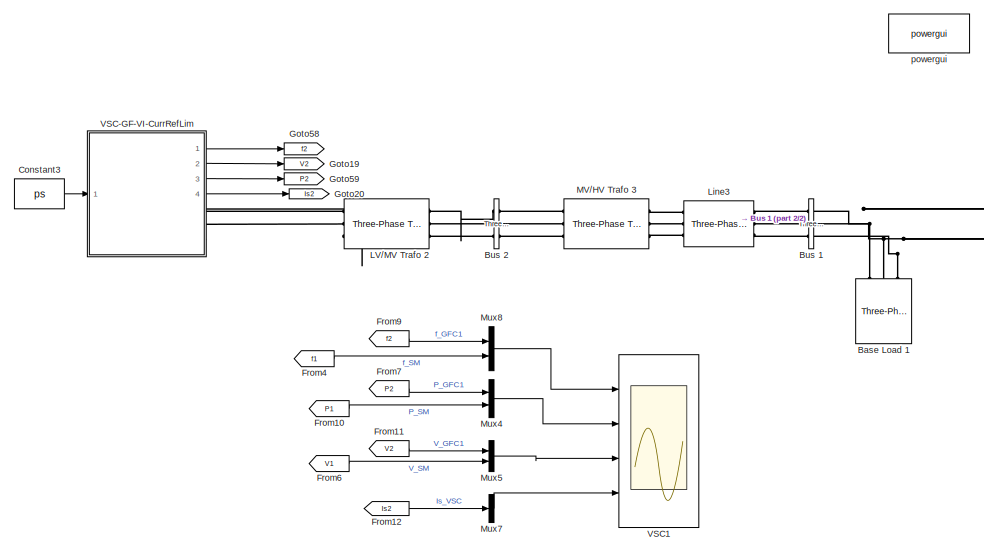
[diagram: root canvas - part 1/2, left side, full height]
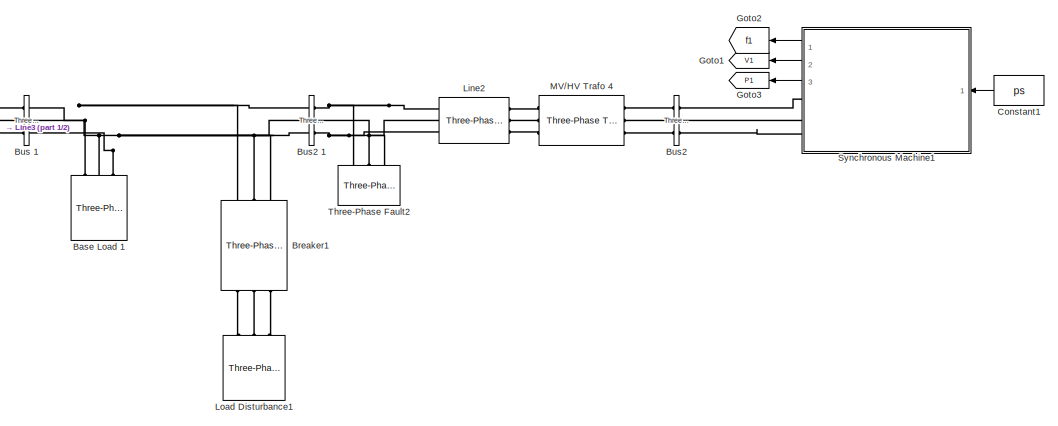
[diagram: root canvas - part 2/2, middle right region]
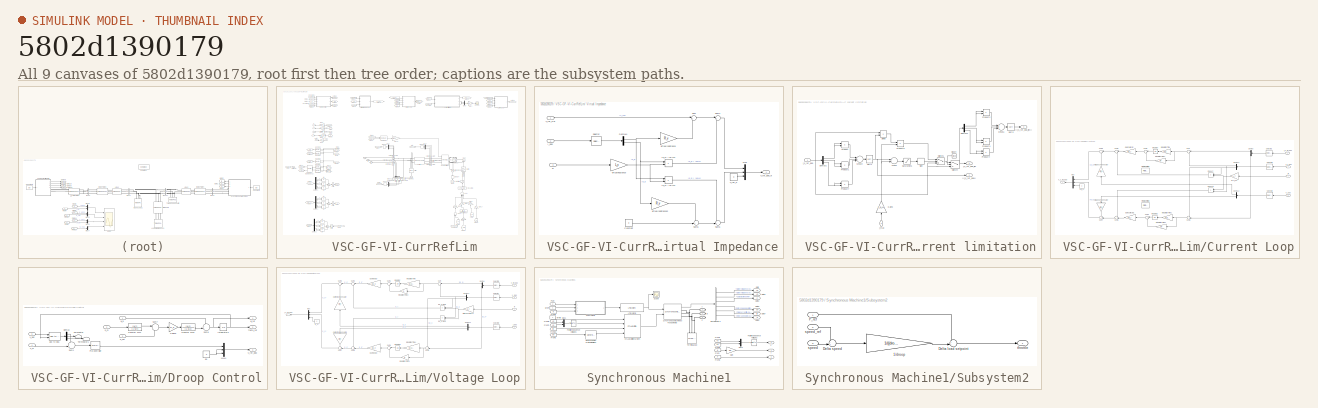
[diagram: thumbnail index - all 9 canvases of the model, root first then tree order]
MODEL slx_5802d1390179
KIND model
CONFIG AbsTol = auto
CONFIG EnableMultiTasking = off
CONFIG FixedStep = auto
CONFIG MaxStep = auto
CONFIG MinStep = auto
CONFIG RelTol = 1e-3
CONFIG SampleTimeConstraint = Unconstrained
CONFIG Solver = ode23tb
CONFIG SolverName = ode23tb
CONFIG StartTime = 0.0
CONFIG StopTime = Tend
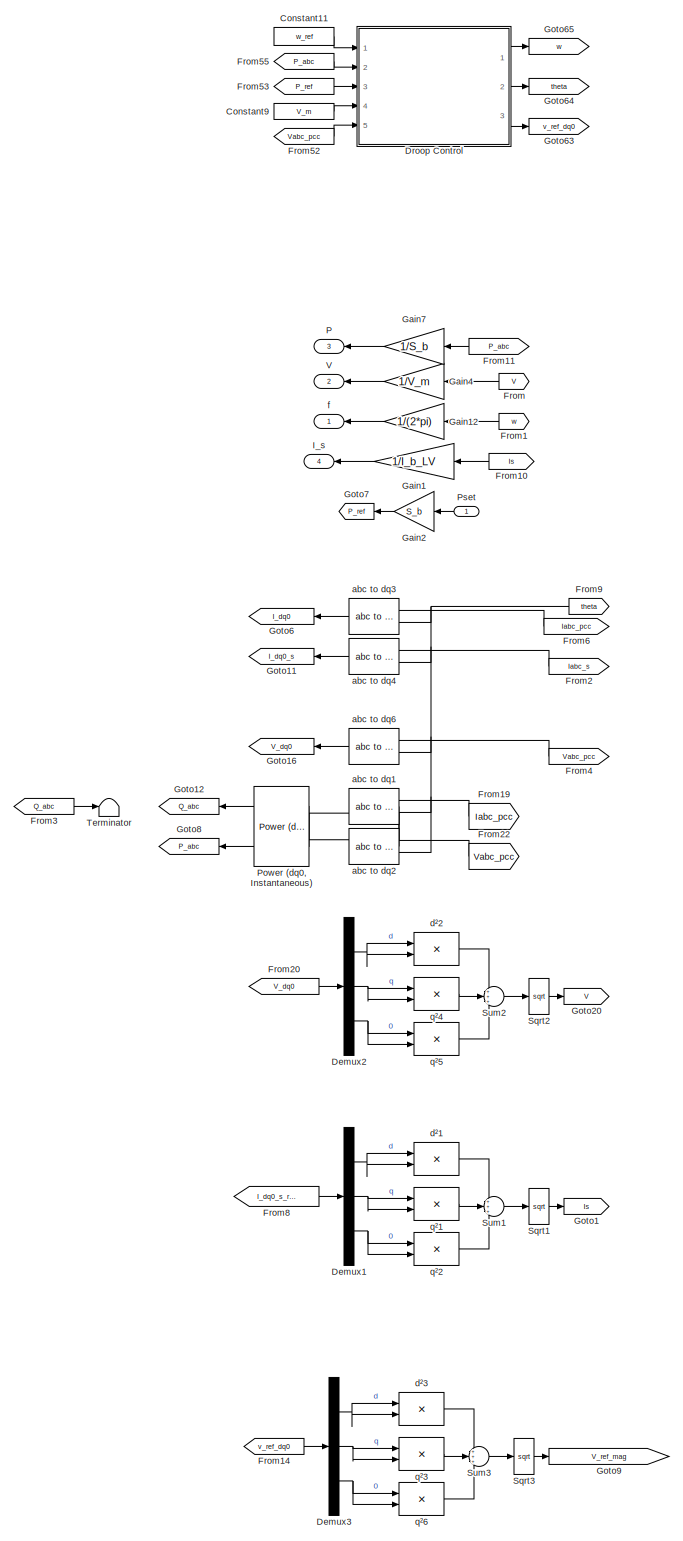
[diagram:  VSC-GF-VI-CurrRefLim - part 1/5, left side, full height]
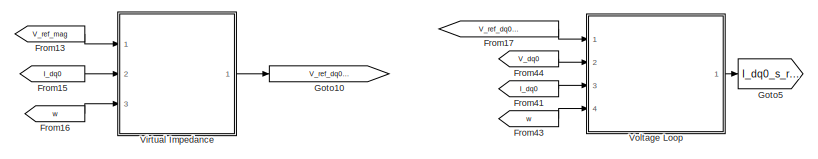
[diagram:  VSC-GF-VI-CurrRefLim - part 2/5, top center region]
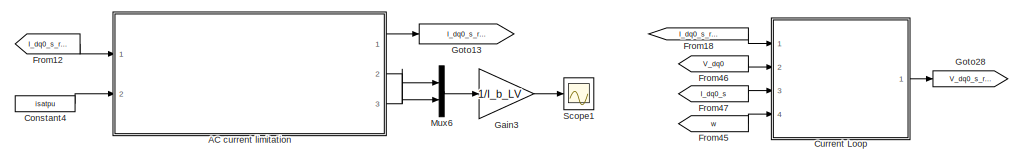
[diagram:  VSC-GF-VI-CurrRefLim - part 3/5, top right region]
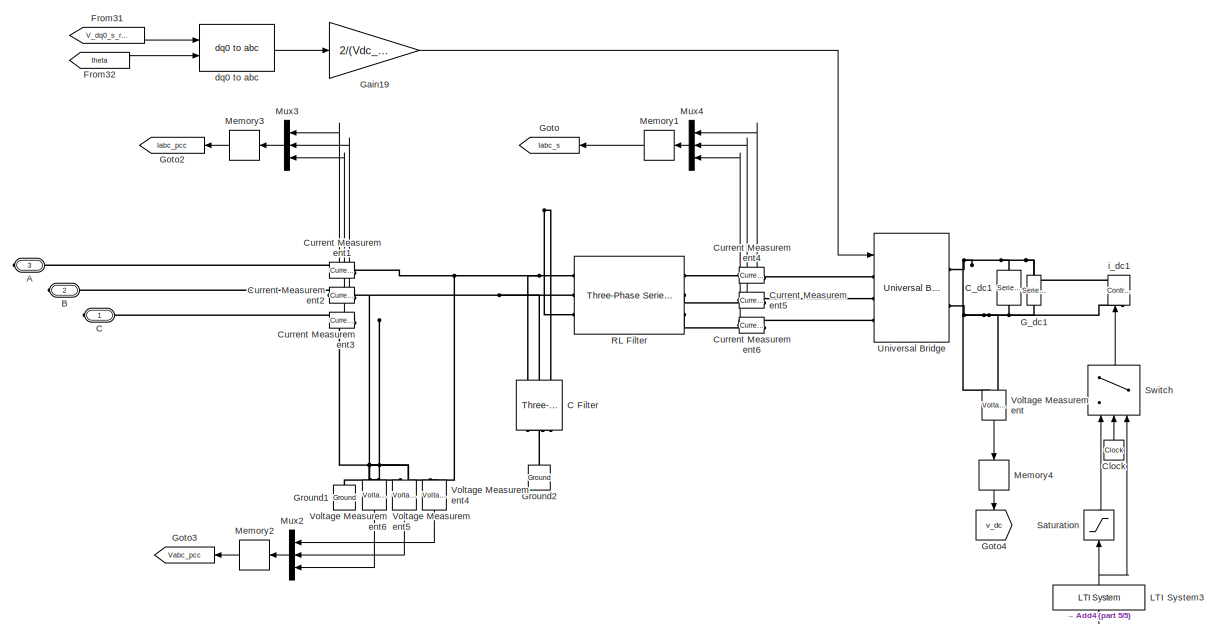
[diagram:  VSC-GF-VI-CurrRefLim - part 4/5, central region]
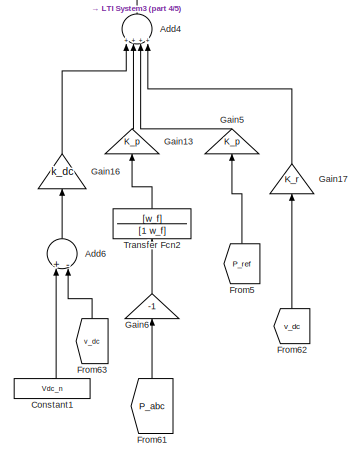
[diagram:  VSC-GF-VI-CurrRefLim - part 5/5, bottom right region]
BLOCK [SubSystem]  VSC-GF-VI-CurrRefLim
  Ports = [1, 4, 0, 0, 0, 0, 3]
  RequestExecContextInheritance = off
BLOCK [SubSystem]  VSC-GF-VI-CurrRefLim/ Virtual Impedance
  Ports = [3, 1]
  RequestExecContextInheritance = off
BLOCK [Constant]  VSC-GF-VI-CurrRefLim/ Virtual Impedance/Constant
  Value = 0
BLOCK [Demux]  VSC-GF-VI-CurrRefLim/ Virtual Impedance/Demux4
  DisplayOption = bar
  Outputs = 2
  Ports = [1, 2]
BLOCK [Inport]  VSC-GF-VI-CurrRefLim/ Virtual Impedance/I_dq0
  IconDisplay = Port number
  Port = 2
BLOCK [Product]  VSC-GF-VI-CurrRefLim/ Virtual Impedance/Io_d * (w*Lv) 
  InputSameDT = off
  OutDataTypeStr = Inherit: Inherit via internal rule
  Ports = [2, 1]
  SaturateOnIntegerOverflow = off
BLOCK [Product]  VSC-GF-VI-CurrRefLim/ Virtual Impedance/Io_q * (w*Lv) 
  InputSameDT = off
  OutDataTypeStr = Inherit: Inherit via internal rule
  Ports = [2, 1]
  SaturateOnIntegerOverflow = off
BLOCK [Mux]  VSC-GF-VI-CurrRefLim/ Virtual Impedance/Mux
  DisplayOption = bar
  Inputs = 3
  Ports = [3, 1]
BLOCK [Selector]  VSC-GF-VI-CurrRefLim/ Virtual Impedance/Selector
  IndexOptions = Index vector (dialog)
  Indices = [1 2]
  InputPortWidth = 3
  OutputSizes = 1
  Ports = [1, 1]
BLOCK [Sum]  VSC-GF-VI-CurrRefLim/ Virtual Impedance/Sum
  IconShape = round
  InputSameDT = off
  Inputs = |+-
  OutDataTypeStr = Inherit: Inherit via internal rule
  Ports = [2, 1]
  SaturateOnIntegerOverflow = off
BLOCK [Sum]  VSC-GF-VI-CurrRefLim/ Virtual Impedance/Sum4
  IconShape = round
  InputSameDT = off
  Inputs = |++
  OutDataTypeStr = Inherit: Inherit via internal rule
  Ports = [2, 1]
  SaturateOnIntegerOverflow = off
BLOCK [Sum]  VSC-GF-VI-CurrRefLim/ Virtual Impedance/Sum5
  IconShape = round
  InputSameDT = off
  Inputs = -+|
  OutDataTypeStr = Inherit: Inherit via internal rule
  Ports = [2, 1]
  SaturateOnIntegerOverflow = off
BLOCK [Sum]  VSC-GF-VI-CurrRefLim/ Virtual Impedance/Sum6
  IconShape = round
  InputSameDT = off
  Inputs = -+|
  OutDataTypeStr = Inherit: Inherit via internal rule
  Ports = [2, 1]
  SaturateOnIntegerOverflow = off
BLOCK [Constant]  VSC-GF-VI-CurrRefLim/ Virtual Impedance/V_ref_0
  Value = 0
BLOCK [Inport]  VSC-GF-VI-CurrRefLim/ Virtual Impedance/V_ref_P-w 
  IconDisplay = Port number
BLOCK [Outport]  VSC-GF-VI-CurrRefLim/ Virtual Impedance/V_ref_dq0_VI
  IconDisplay = Port number
BLOCK [Gain]  VSC-GF-VI-CurrRefLim/ Virtual Impedance/Virtual indutance
  Gain = L_v
  OutDataTypeStr = Inherit: Inherit via internal rule
  ParamDataTypeStr = Inherit: Inherit via internal rule
  SaturateOnIntegerOverflow = off
BLOCK [Gain]  VSC-GF-VI-CurrRefLim/ Virtual Impedance/Virtual resistance
  Gain = R_v
  OutDataTypeStr = Inherit: Inherit via internal rule
  ParamDataTypeStr = Inherit: Inherit via internal rule
  SaturateOnIntegerOverflow = off
BLOCK [Gain]  VSC-GF-VI-CurrRefLim/ Virtual Impedance/Virtual resistance2 
  Gain = R_v
  OutDataTypeStr = Inherit: Inherit via internal rule
  ParamDataTypeStr = Inherit: Inherit via internal rule
  SaturateOnIntegerOverflow = off
BLOCK [Inport]  VSC-GF-VI-CurrRefLim/ Virtual Impedance/w
  IconDisplay = Port number
  Port = 3
BLOCK [PMIOPort]  VSC-GF-VI-CurrRefLim/A
  Port = 3
  Side = Right
BLOCK [SubSystem]  VSC-GF-VI-CurrRefLim/AC current limitation
  Ports = [2, 3]
  RequestExecContextInheritance = off
BLOCK [Clock]  VSC-GF-VI-CurrRefLim/AC current limitation/Clock4
  Decimation = 7
BLOCK [Demux]  VSC-GF-VI-CurrRefLim/AC current limitation/Demux1
  DisplayOption = bar
  Outputs = 3
  Ports = [1, 3]
BLOCK [Demux]  VSC-GF-VI-CurrRefLim/AC current limitation/Demux2
  DisplayOption = bar
  Outputs = 3
  Ports = [1, 3]
BLOCK [Product]  VSC-GF-VI-CurrRefLim/AC current limitation/Divide
  InputSameDT = off
  Inputs = */
  OutDataTypeStr = Inherit: Inherit via internal rule
  Ports = [2, 1]
  RndMeth = Floor
  SaturateOnIntegerOverflow = off
BLOCK [Gain]  VSC-GF-VI-CurrRefLim/AC current limitation/Gain3
  Gain = I_b_LV
  OutDataTypeStr = Inherit: Inherit via internal rule
  ParamDataTypeStr = Inherit: Inherit via internal rule
  SaturateOnIntegerOverflow = off
BLOCK [Sum]  VSC-GF-VI-CurrRefLim/AC current limitation/Minus
  InputSameDT = off
  Inputs = +-
  OutDataTypeStr = Inherit: Inherit via internal rule
  Ports = [2, 1]
  SaturateOnIntegerOverflow = off
BLOCK [Sum]  VSC-GF-VI-CurrRefLim/AC current limitation/Minus1
  InputSameDT = off
  Inputs = +++
  OutDataTypeStr = Inherit: Inherit via internal rule
  Ports = [3, 1]
  SaturateOnIntegerOverflow = off
BLOCK [Sum]  VSC-GF-VI-CurrRefLim/AC current limitation/Minus4
  InputSameDT = off
  Inputs = +++
  OutDataTypeStr = Inherit: Inherit via internal rule
  Ports = [3, 1]
  SaturateOnIntegerOverflow = off
BLOCK [Product]  VSC-GF-VI-CurrRefLim/AC current limitation/Product
  InputSameDT = off
  OutDataTypeStr = Inherit: Inherit via internal rule
  Ports = [2, 1]
  SaturateOnIntegerOverflow = off
BLOCK [Product]  VSC-GF-VI-CurrRefLim/AC current limitation/Product1
  InputSameDT = off
  OutDataTypeStr = Inherit: Inherit via internal rule
  Ports = [2, 1]
  SaturateOnIntegerOverflow = off
BLOCK [Product]  VSC-GF-VI-CurrRefLim/AC current limitation/Product2
  InputSameDT = off
  OutDataTypeStr = Inherit: Inherit via internal rule
  Ports = [2, 1]
  SaturateOnIntegerOverflow = off
BLOCK [Product]  VSC-GF-VI-CurrRefLim/AC current limitation/Product3
  InputSameDT = off
  OutDataTypeStr = Inherit: Inherit via internal rule
  Ports = [2, 1]
  SaturateOnIntegerOverflow = off
BLOCK [Product]  VSC-GF-VI-CurrRefLim/AC current limitation/Product4
  InputSameDT = off
  OutDataTypeStr = Inherit: Inherit via internal rule
  Ports = [2, 1]
  SaturateOnIntegerOverflow = off
BLOCK [Product]  VSC-GF-VI-CurrRefLim/AC current limitation/Product6
  InputSameDT = off
  OutDataTypeStr = Inherit: Inherit via internal rule
  Ports = [2, 1]
  SaturateOnIntegerOverflow = off
BLOCK [Product]  VSC-GF-VI-CurrRefLim/AC current limitation/Product7
  InputSameDT = off
  OutDataTypeStr = Inherit: Inherit via internal rule
  Ports = [2, 1]
  SaturateOnIntegerOverflow = off
BLOCK [Saturate]  VSC-GF-VI-CurrRefLim/AC current limitation/Saturation1
  InputPortMap = u0
  LowerLimit = 0
  Ports = [1, 1]
  UpperLimit = inf
BLOCK [Signum]  VSC-GF-VI-CurrRefLim/AC current limitation/Sign
BLOCK [Sqrt]  VSC-GF-VI-CurrRefLim/AC current limitation/Sqrt1
BLOCK [Sqrt]  VSC-GF-VI-CurrRefLim/AC current limitation/Sqrt2
BLOCK [Switch]  VSC-GF-VI-CurrRefLim/AC current limitation/Switch1
  InputSameDT = off
  SaturateOnIntegerOverflow = off
  Threshold = 1
BLOCK [Switch]  VSC-GF-VI-CurrRefLim/AC current limitation/Switch4
  Criteria = u2 > Threshold
  InputSameDT = off
  SaturateOnIntegerOverflow = off
  Threshold = T_en
BLOCK [Inport]  VSC-GF-VI-CurrRefLim/AC current limitation/i_max
  IconDisplay = Port number
  Port = 2
BLOCK [Inport]  VSC-GF-VI-CurrRefLim/AC current limitation/i_s_ref_dq0
  IconDisplay = Port number
BLOCK [Outport]  VSC-GF-VI-CurrRefLim/AC current limitation/i_s_ref_dq0_lim
  IconDisplay = Port number
  VectorParamsAs1DForOutWhenUnconnected = off
BLOCK [Outport]  VSC-GF-VI-CurrRefLim/AC current limitation/||i_s_ref_dq0_lim||
  IconDisplay = Port number
  Port = 3
  VectorParamsAs1DForOutWhenUnconnected = off
BLOCK [Outport]  VSC-GF-VI-CurrRefLim/AC current limitation/||i_s_ref_dq0||
  IconDisplay = Port number
  Port = 2
  VectorParamsAs1DForOutWhenUnconnected = off
BLOCK [Sum]  VSC-GF-VI-CurrRefLim/Add4
  InputSameDT = off
  Inputs = ++++
  OutDataTypeStr = Inherit: Inherit via internal rule
  Ports = [4, 1]
  SaturateOnIntegerOverflow = off
BLOCK [Sum]  VSC-GF-VI-CurrRefLim/Add6
  InputSameDT = off
  Inputs = +-
  OutDataTypeStr = Inherit: Inherit via internal rule
  Ports = [2, 1]
  SaturateOnIntegerOverflow = off
BLOCK [PMIOPort]  VSC-GF-VI-CurrRefLim/B
  Port = 2
  Side = Right
BLOCK [PMIOPort]  VSC-GF-VI-CurrRefLim/C
  Side = Right
BLOCK [Reference]  VSC-GF-VI-CurrRefLim/C Filter  REF=powerlib/Elements/Three-Phase
Parallel RLC Branch
  AttributesFormatString = \n
  Ports = [0, 0, 0, 0, 0, 3, 3]
  SourceBlock = powerlib/Elements/Three-Phase\nParallel RLC Branch
  SourceProductBaseCode = PS
  SourceProductName = Simscape Electrical
  SourceType = Three-Phase Parallel RLC Branch
BLOCK [Reference]  VSC-GF-VI-CurrRefLim/C_dc1  REF=powerlib/Elements/Series RLC Branch
  Ports = [0, 0, 0, 0, 0, 1, 1]
  SourceBlock = powerlib/Elements/Series RLC Branch
  SourceProductBaseCode = PS
  SourceProductName = Simscape Electrical
  SourceType = Series RLC Branch
BLOCK [Clock]  VSC-GF-VI-CurrRefLim/Clock
BLOCK [Constant]  VSC-GF-VI-CurrRefLim/Constant1
  Value = Vdc_n
BLOCK [Constant]  VSC-GF-VI-CurrRefLim/Constant11
  Value = w_ref
BLOCK [Constant]  VSC-GF-VI-CurrRefLim/Constant4
  Value = isatpu
BLOCK [Constant]  VSC-GF-VI-CurrRefLim/Constant9
  Value = V_m
BLOCK [SubSystem]  VSC-GF-VI-CurrRefLim/Current Loop
  Ports = [4, 1]
  RequestExecContextInheritance = off
BLOCK [Demux]  VSC-GF-VI-CurrRefLim/Current Loop/Demux
  DisplayOption = bar
  Outputs = 2
  Ports = [1, 2]
BLOCK [Demux]  VSC-GF-VI-CurrRefLim/Current Loop/Demux1
  DisplayOption = bar
  Outputs = 2
  Ports = [1, 2]
BLOCK [Demux]  VSC-GF-VI-CurrRefLim/Current Loop/Demux2
  DisplayOption = bar
  Outputs = 2
  Ports = [1, 2]
BLOCK [Reference]  VSC-GF-VI-CurrRefLim/Current Loop/First-Order Filter2  REF=powerlib_meascontrol/Filters/First-Order
Filter
  Commented = on
  Ports = [1, 1]
  SourceBlock = powerlib_meascontrol/Filters/First-Order\nFilter
  SourceProductBaseCode = PS
  SourceProductName = Simscape Electrical
  SourceType = First-Order Filter
BLOCK [Reference]  VSC-GF-VI-CurrRefLim/Current Loop/First-Order Filter3  REF=powerlib_meascontrol/Filters/First-Order
Filter
  Commented = on
  Ports = [1, 1]
  SourceBlock = powerlib_meascontrol/Filters/First-Order\nFilter
  SourceProductBaseCode = PS
  SourceProductName = Simscape Electrical
  SourceType = First-Order Filter
BLOCK [Gain]  VSC-GF-VI-CurrRefLim/Current Loop/Gain Corrector
  Gain = Kp_i
  OutDataTypeStr = Inherit: Inherit via internal rule
  ParamDataTypeStr = Inherit: Inherit via internal rule
  SaturateOnIntegerOverflow = off
BLOCK [Gain]  VSC-GF-VI-CurrRefLim/Current Loop/Gain Corrector1
  Gain = Kp_i
  OutDataTypeStr = Inherit: Inherit via internal rule
  ParamDataTypeStr = Inherit: Inherit via internal rule
  SaturateOnIntegerOverflow = off
BLOCK [Gain]  VSC-GF-VI-CurrRefLim/Current Loop/Integration Time
  Gain = Ki_i / Kp_i
  OutDataTypeStr = Inherit: Inherit via internal rule
  ParamDataTypeStr = Inherit: Inherit via internal rule
  SaturateOnIntegerOverflow = off
BLOCK [Gain]  VSC-GF-VI-CurrRefLim/Current Loop/Integration Time 1
  Gain = Ki_i / Kp_i
  OutDataTypeStr = Inherit: Inherit via internal rule
  ParamDataTypeStr = Inherit: Inherit via internal rule
  SaturateOnIntegerOverflow = off
BLOCK [Gain]  VSC-GF-VI-CurrRefLim/Current Loop/Integration Time1
  Gain = 1/n
  OutDataTypeStr = Inherit: Inherit via internal rule
  ParamDataTypeStr = Inherit: Inherit via internal rule
  SaturateOnIntegerOverflow = off
BLOCK [Gain]  VSC-GF-VI-CurrRefLim/Current Loop/Integration Time2
  Gain = 1/n
  OutDataTypeStr = Inherit: Inherit via internal rule
  ParamDataTypeStr = Inherit: Inherit via internal rule
  SaturateOnIntegerOverflow = off
BLOCK [Integrator]  VSC-GF-VI-CurrRefLim/Current Loop/Integrator
  InitialCondition = 0.0001
  Ports = [1, 1]
BLOCK [Integrator]  VSC-GF-VI-CurrRefLim/Current Loop/Integrator 1
  Ports = [1, 1]
BLOCK [Mux]  VSC-GF-VI-CurrRefLim/Current Loop/Mux
  DisplayOption = bar
  Inputs = 3
  Ports = [3, 1]
BLOCK [Product]  VSC-GF-VI-CurrRefLim/Current Loop/Product
  InputSameDT = off
  OutDataTypeStr = Inherit: Inherit via internal rule
  Ports = [2, 1]
  SaturateOnIntegerOverflow = off
BLOCK [Product]  VSC-GF-VI-CurrRefLim/Current Loop/Product1
  InputSameDT = off
  OutDataTypeStr = Inherit: Inherit via internal rule
  Ports = [2, 1]
  SaturateOnIntegerOverflow = off
BLOCK [Selector]  VSC-GF-VI-CurrRefLim/Current Loop/Selector1
  IndexOptions = Index vector (dialog)
  Indices = [1 2]
  InputPortWidth = 3
  OutputSizes = 1
  Ports = [1, 1]
BLOCK [Selector]  VSC-GF-VI-CurrRefLim/Current Loop/Selector2
  IndexOptions = Index vector (dialog)
  Indices = [1 2]
  InputPortWidth = 3
  OutputSizes = 1
  Ports = [1, 1]
BLOCK [Selector]  VSC-GF-VI-CurrRefLim/Current Loop/Selector3
  IndexOptions = Index vector (dialog)
  Indices = [1 2]
  InputPortWidth = 3
  OutputSizes = 1
  Ports = [1, 1]
BLOCK [Sum]  VSC-GF-VI-CurrRefLim/Current Loop/Sum
  IconShape = round
  InputSameDT = off
  Inputs = |+-
  OutDataTypeStr = Inherit: Inherit via internal rule
  Ports = [2, 1]
  SaturateOnIntegerOverflow = off
BLOCK [Sum]  VSC-GF-VI-CurrRefLim/Current Loop/Sum1
  IconShape = round
  InputSameDT = off
  Inputs = |++
  OutDataTypeStr = Inherit: Inherit via internal rule
  Ports = [2, 1]
  SaturateOnIntegerOverflow = off
BLOCK [Sum]  VSC-GF-VI-CurrRefLim/Current Loop/Sum2
  IconShape = round
  InputSameDT = off
  Inputs = |+-
  OutDataTypeStr = Inherit: Inherit via internal rule
  Ports = [2, 1]
  SaturateOnIntegerOverflow = off
BLOCK [Sum]  VSC-GF-VI-CurrRefLim/Current Loop/Sum3
  IconShape = round
  InputSameDT = off
  Inputs = |++
  OutDataTypeStr = Inherit: Inherit via internal rule
  Ports = [2, 1]
  SaturateOnIntegerOverflow = off
BLOCK [Sum]  VSC-GF-VI-CurrRefLim/Current Loop/Sum4
  IconShape = round
  InputSameDT = off
  Inputs = |++
  OutDataTypeStr = Inherit: Inherit via internal rule
  Ports = [2, 1]
  SaturateOnIntegerOverflow = off
BLOCK [Sum]  VSC-GF-VI-CurrRefLim/Current Loop/Sum5
  IconShape = round
  InputSameDT = off
  Inputs = ++|
  OutDataTypeStr = Inherit: Inherit via internal rule
  Ports = [2, 1]
  SaturateOnIntegerOverflow = off
BLOCK [Sum]  VSC-GF-VI-CurrRefLim/Current Loop/Sum6
  IconShape = round
  InputSameDT = off
  Inputs = -+|
  OutDataTypeStr = Inherit: Inherit via internal rule
  Ports = [2, 1]
  SaturateOnIntegerOverflow = off
BLOCK [Sum]  VSC-GF-VI-CurrRefLim/Current Loop/Sum7
  IconShape = round
  InputSameDT = off
  Inputs = ++|
  OutDataTypeStr = Inherit: Inherit via internal rule
  Ports = [2, 1]
  SaturateOnIntegerOverflow = off
BLOCK [Constant]  VSC-GF-VI-CurrRefLim/Current Loop/Vm_0*
  Value = 0
BLOCK [Gain]  VSC-GF-VI-CurrRefLim/Current Loop/Voltage Compensator 1
  Gain = Kff_v
  OutDataTypeStr = Inherit: Inherit via internal rule
  ParamDataTypeStr = Inherit: Inherit via internal rule
  SaturateOnIntegerOverflow = off
BLOCK [Gain]  VSC-GF-VI-CurrRefLim/Current Loop/Voltage compensator
  Gain = Kff_v
  OutDataTypeStr = Inherit: Inherit via internal rule
  ParamDataTypeStr = Inherit: Inherit via internal rule
  SaturateOnIntegerOverflow = off
BLOCK [Inport]  VSC-GF-VI-CurrRefLim/Current Loop/i_s_dq0
  IconDisplay = Port number
  Port = 3
BLOCK [Inport]  VSC-GF-VI-CurrRefLim/Current Loop/i_s_ref_dq0
  IconDisplay = Port number
BLOCK [Inport]  VSC-GF-VI-CurrRefLim/Current Loop/v_dq0
  IconDisplay = Port number
  Port = 2
BLOCK [Outport]  VSC-GF-VI-CurrRefLim/Current Loop/v_s_ref_dq0
  IconDisplay = Port number
  VectorParamsAs1DForOutWhenUnconnected = off
BLOCK [Inport]  VSC-GF-VI-CurrRefLim/Current Loop/w
  IconDisplay = Port number
  Port = 4
BLOCK [Gain]  VSC-GF-VI-CurrRefLim/Current Loop/w*Lf_pu
  Gain = L_f
  OutDataTypeStr = Inherit: Inherit via internal rule
  ParamDataTypeStr = Inherit: Inherit via internal rule
  SaturateOnIntegerOverflow = off
BLOCK [Reference]  VSC-GF-VI-CurrRefLim/Current Measurement1  REF=powerlib/Measurements/Current Measurement
  Ports = [0, 1, 0, 0, 0, 1, 1]
  SourceBlock = powerlib/Measurements/Current Measurement
  SourceProductBaseCode = PS
  SourceProductName = Simscape Electrical
  SourceType = Current Measurement
  UserDataPersistent = on
BLOCK [Reference]  VSC-GF-VI-CurrRefLim/Current Measurement2  REF=powerlib/Measurements/Current Measurement
  Ports = [0, 1, 0, 0, 0, 1, 1]
  SourceBlock = powerlib/Measurements/Current Measurement
  SourceProductBaseCode = PS
  SourceProductName = Simscape Electrical
  SourceType = Current Measurement
  UserDataPersistent = on
BLOCK [Reference]  VSC-GF-VI-CurrRefLim/Current Measurement3  REF=powerlib/Measurements/Current Measurement
  Ports = [0, 1, 0, 0, 0, 1, 1]
  SourceBlock = powerlib/Measurements/Current Measurement
  SourceProductBaseCode = PS
  SourceProductName = Simscape Electrical
  SourceType = Current Measurement
  UserDataPersistent = on
BLOCK [Reference]  VSC-GF-VI-CurrRefLim/Current Measurement4  REF=powerlib/Measurements/Current Measurement
  Ports = [0, 1, 0, 0, 0, 1, 1]
  SourceBlock = powerlib/Measurements/Current Measurement
  SourceProductBaseCode = PS
  SourceProductName = Simscape Electrical
  SourceType = Current Measurement
  UserDataPersistent = on
BLOCK [Reference]  VSC-GF-VI-CurrRefLim/Current Measurement5  REF=powerlib/Measurements/Current Measurement
  Ports = [0, 1, 0, 0, 0, 1, 1]
  SourceBlock = powerlib/Measurements/Current Measurement
  SourceProductBaseCode = PS
  SourceProductName = Simscape Electrical
  SourceType = Current Measurement
  UserDataPersistent = on
BLOCK [Reference]  VSC-GF-VI-CurrRefLim/Current Measurement6  REF=powerlib/Measurements/Current Measurement
  Ports = [0, 1, 0, 0, 0, 1, 1]
  SourceBlock = powerlib/Measurements/Current Measurement
  SourceProductBaseCode = PS
  SourceProductName = Simscape Electrical
  SourceType = Current Measurement
  UserDataPersistent = on
BLOCK [Demux]  VSC-GF-VI-CurrRefLim/Demux1
  DisplayOption = bar
  Outputs = 3
  Ports = [1, 3]
BLOCK [Demux]  VSC-GF-VI-CurrRefLim/Demux2
  DisplayOption = bar
  Outputs = 3
  Ports = [1, 3]
BLOCK [Demux]  VSC-GF-VI-CurrRefLim/Demux3
  DisplayOption = bar
  Outputs = 3
  Ports = [1, 3]
BLOCK [SubSystem]  VSC-GF-VI-CurrRefLim/Droop Control
  Ports = [5, 3]
  RequestExecContextInheritance = off
BLOCK [Demux]  VSC-GF-VI-CurrRefLim/Droop Control/Demux
  DisplayOption = bar
  Outputs = 3
  Ports = [1, 3]
BLOCK [Gain]  VSC-GF-VI-CurrRefLim/Droop Control/Gain20
  Gain = m_p
  OutDataTypeStr = Inherit: Inherit via internal rule
  ParamDataTypeStr = Inherit: Inherit via internal rule
  SaturateOnIntegerOverflow = off
BLOCK [Integrator]  VSC-GF-VI-CurrRefLim/Droop Control/Integrator3
  Ports = [1, 1]
BLOCK [Mux]  VSC-GF-VI-CurrRefLim/Droop Control/Mux4
  DisplayOption = bar
  Inputs = 3
  Ports = [3, 1]
BLOCK [Reference]  VSC-GF-VI-CurrRefLim/Droop Control/PID Controller  REF=simulink/Continuous/PID Controller
  Ports = [1, 1]
  SourceBlock = simulink/Continuous/PID Controller
  SourceProductBaseCode = SL
  SourceProductName = Simulink
  SourceType = PID 1dof
BLOCK [Sum]  VSC-GF-VI-CurrRefLim/Droop Control/Sum1
  IconShape = round
  InputSameDT = off
  Inputs = -+|
  OutDataTypeStr = Inherit: Inherit via internal rule
  Ports = [2, 1]
  SaturateOnIntegerOverflow = off
BLOCK [Sum]  VSC-GF-VI-CurrRefLim/Droop Control/Sum7
  IconShape = round
  InputSameDT = off
  Inputs = |-+
  OutDataTypeStr = Inherit: Inherit via internal rule
  Ports = [2, 1]
  SaturateOnIntegerOverflow = off
BLOCK [Sum]  VSC-GF-VI-CurrRefLim/Droop Control/Sum8
  IconShape = round
  InputSameDT = off
  Inputs = ++|
  OutDataTypeStr = Inherit: Inherit via internal rule
  Ports = [2, 1]
  SaturateOnIntegerOverflow = off
BLOCK [Terminator]  VSC-GF-VI-CurrRefLim/Droop Control/Terminator
BLOCK [Terminator]  VSC-GF-VI-CurrRefLim/Droop Control/Terminator1
BLOCK [TransferFcn]  VSC-GF-VI-CurrRefLim/Droop Control/Transfer Fcn1
  Denominator = [1 w_f]
  Numerator = [w_f]
BLOCK [TransferFcn]  VSC-GF-VI-CurrRefLim/Droop Control/Transfer Fcn2
  Denominator = [1 w_c]
  Numerator = [w_c]
BLOCK [Inport]  VSC-GF-VI-CurrRefLim/Droop Control/V_abc
  IconDisplay = Port number
  Port = 5
BLOCK [Reference]  VSC-GF-VI-CurrRefLim/Droop Control/abc to dq1  REF=powerlib_meascontrol/Transformations/abc to dq0
  Ports = [2, 1]
  SourceBlock = powerlib_meascontrol/Transformations/abc to dq0
  SourceProductBaseCode = PS
  SourceProductName = Simscape Electrical
  SourceType = abc to dq0 Transformation
BLOCK [Inport]  VSC-GF-VI-CurrRefLim/Droop Control/p_m
  IconDisplay = Port number
  Port = 2
BLOCK [Inport]  VSC-GF-VI-CurrRefLim/Droop Control/p_set
  IconDisplay = Port number
  Port = 3
BLOCK [Constant]  VSC-GF-VI-CurrRefLim/Droop Control/q0
  Value = 0
BLOCK [Outport]  VSC-GF-VI-CurrRefLim/Droop Control/theta_ref
  IconDisplay = Port number
  Port = 2
  VectorParamsAs1DForOutWhenUnconnected = off
BLOCK [Inport]  VSC-GF-VI-CurrRefLim/Droop Control/v_m
  IconDisplay = Port number
  Port = 4
BLOCK [Outport]  VSC-GF-VI-CurrRefLim/Droop Control/v_ref_dq0
  IconDisplay = Port number
  Port = 3
  VectorParamsAs1DForOutWhenUnconnected = off
BLOCK [Inport]  VSC-GF-VI-CurrRefLim/Droop Control/w_b
  IconDisplay = Port number
BLOCK [Outport]  VSC-GF-VI-CurrRefLim/Droop Control/w_ref
  IconDisplay = Port number
  VectorParamsAs1DForOutWhenUnconnected = off
BLOCK [From]  VSC-GF-VI-CurrRefLim/From
  GotoTag = V
BLOCK [From]  VSC-GF-VI-CurrRefLim/From1
  GotoTag = w
BLOCK [From]  VSC-GF-VI-CurrRefLim/From10
  GotoTag = Is
BLOCK [From]  VSC-GF-VI-CurrRefLim/From11
  GotoTag = P_abc
BLOCK [From]  VSC-GF-VI-CurrRefLim/From12
  GotoTag = I_dq0_s_ref
BLOCK [From]  VSC-GF-VI-CurrRefLim/From13
  GotoTag = V_ref_mag
BLOCK [From]  VSC-GF-VI-CurrRefLim/From14
  GotoTag = v_ref_dq0
BLOCK [From]  VSC-GF-VI-CurrRefLim/From15
  GotoTag = I_dq0
BLOCK [From]  VSC-GF-VI-CurrRefLim/From16
  GotoTag = w
BLOCK [From]  VSC-GF-VI-CurrRefLim/From17
  GotoTag = V_ref_dq0_VI
BLOCK [From]  VSC-GF-VI-CurrRefLim/From18
  GotoTag = I_dq0_s_ref_lim
BLOCK [From]  VSC-GF-VI-CurrRefLim/From19
  GotoTag = Iabc_pcc
BLOCK [From]  VSC-GF-VI-CurrRefLim/From2
  GotoTag = Iabc_s
BLOCK [From]  VSC-GF-VI-CurrRefLim/From20
  GotoTag = V_dq0
BLOCK [From]  VSC-GF-VI-CurrRefLim/From22
  GotoTag = Vabc_pcc
BLOCK [From]  VSC-GF-VI-CurrRefLim/From3
  GotoTag = Q_abc
BLOCK [From]  VSC-GF-VI-CurrRefLim/From31
  GotoTag = V_dq0_s_ref
BLOCK [From]  VSC-GF-VI-CurrRefLim/From32
  GotoTag = theta
BLOCK [From]  VSC-GF-VI-CurrRefLim/From4
  GotoTag = Vabc_pcc
BLOCK [From]  VSC-GF-VI-CurrRefLim/From41
  GotoTag = I_dq0
BLOCK [From]  VSC-GF-VI-CurrRefLim/From43
  GotoTag = w
BLOCK [From]  VSC-GF-VI-CurrRefLim/From44
  GotoTag = V_dq0
BLOCK [From]  VSC-GF-VI-CurrRefLim/From45
  GotoTag = w
BLOCK [From]  VSC-GF-VI-CurrRefLim/From46
  GotoTag = V_dq0
BLOCK [From]  VSC-GF-VI-CurrRefLim/From47
  GotoTag = I_dq0_s
BLOCK [From]  VSC-GF-VI-CurrRefLim/From5
  GotoTag = P_ref
BLOCK [From]  VSC-GF-VI-CurrRefLim/From52
  GotoTag = Vabc_pcc
BLOCK [From]  VSC-GF-VI-CurrRefLim/From53
  GotoTag = P_ref
BLOCK [From]  VSC-GF-VI-CurrRefLim/From55
  GotoTag = P_abc
BLOCK [From]  VSC-GF-VI-CurrRefLim/From6
  GotoTag = Iabc_pcc
BLOCK [From]  VSC-GF-VI-CurrRefLim/From61
  GotoTag = P_abc
BLOCK [From]  VSC-GF-VI-CurrRefLim/From62
  GotoTag = v_dc
BLOCK [From]  VSC-GF-VI-CurrRefLim/From63
  GotoTag = v_dc
BLOCK [From]  VSC-GF-VI-CurrRefLim/From8
  GotoTag = I_dq0_s_ref
BLOCK [From]  VSC-GF-VI-CurrRefLim/From9
  GotoTag = theta
BLOCK [Reference]  VSC-GF-VI-CurrRefLim/G_dc1  REF=powerlib/Elements/Series RLC Branch
  Ports = [0, 0, 0, 0, 0, 1, 1]
  SourceBlock = powerlib/Elements/Series RLC Branch
  SourceProductBaseCode = PS
  SourceProductName = Simscape Electrical
  SourceType = Series RLC Branch
BLOCK [Gain]  VSC-GF-VI-CurrRefLim/Gain1
  Gain = 1/I_b_LV
  OutDataTypeStr = Inherit: Inherit via internal rule
  ParamDataTypeStr = Inherit: Inherit via internal rule
  SaturateOnIntegerOverflow = off
BLOCK [Gain]  VSC-GF-VI-CurrRefLim/Gain12
  Gain = 1/(2*pi)
  OutDataTypeStr = Inherit: Inherit via internal rule
  ParamDataTypeStr = Inherit: Inherit via internal rule
  SaturateOnIntegerOverflow = off
BLOCK [Gain]  VSC-GF-VI-CurrRefLim/Gain13
  Gain = K_p
  OutDataTypeStr = Inherit: Inherit via internal rule
  ParamDataTypeStr = Inherit: Inherit via internal rule
  SaturateOnIntegerOverflow = off
BLOCK [Gain]  VSC-GF-VI-CurrRefLim/Gain16
  Gain = k_dc
  OutDataTypeStr = Inherit: Inherit via internal rule
  ParamDataTypeStr = Inherit: Inherit via internal rule
  SaturateOnIntegerOverflow = off
BLOCK [Gain]  VSC-GF-VI-CurrRefLim/Gain17
  Gain = K_r
  OutDataTypeStr = Inherit: Inherit via internal rule
  ParamDataTypeStr = Inherit: Inherit via internal rule
  SaturateOnIntegerOverflow = off
BLOCK [Gain]  VSC-GF-VI-CurrRefLim/Gain19
  Gain = 2/(Vdc_n)
  OutDataTypeStr = Inherit: Inherit via internal rule
  ParamDataTypeStr = Inherit: Inherit via internal rule
  SaturateOnIntegerOverflow = off
BLOCK [Gain]  VSC-GF-VI-CurrRefLim/Gain2
  Gain = S_b
  OutDataTypeStr = Inherit: Inherit via internal rule
  ParamDataTypeStr = Inherit: Inherit via internal rule
  SaturateOnIntegerOverflow = off
BLOCK [Gain]  VSC-GF-VI-CurrRefLim/Gain3
  Gain = 1/I_b_LV
  OutDataTypeStr = Inherit: Inherit via internal rule
  ParamDataTypeStr = Inherit: Inherit via internal rule
  SaturateOnIntegerOverflow = off
BLOCK [Gain]  VSC-GF-VI-CurrRefLim/Gain4
  Gain = 1/V_m
  OutDataTypeStr = Inherit: Inherit via internal rule
  ParamDataTypeStr = Inherit: Inherit via internal rule
  SaturateOnIntegerOverflow = off
BLOCK [Gain]  VSC-GF-VI-CurrRefLim/Gain5
  Gain = K_p
  OutDataTypeStr = Inherit: Inherit via internal rule
  ParamDataTypeStr = Inherit: Inherit via internal rule
  SaturateOnIntegerOverflow = off
BLOCK [Gain]  VSC-GF-VI-CurrRefLim/Gain6
  Gain = -1
  OutDataTypeStr = Inherit: Inherit via internal rule
  ParamDataTypeStr = Inherit: Inherit via internal rule
  SaturateOnIntegerOverflow = off
BLOCK [Gain]  VSC-GF-VI-CurrRefLim/Gain7
  Gain = 1/S_b
  OutDataTypeStr = Inherit: Inherit via internal rule
  ParamDataTypeStr = Inherit: Inherit via internal rule
  SaturateOnIntegerOverflow = off
BLOCK [Goto]  VSC-GF-VI-CurrRefLim/Goto
  GotoTag = Iabc_s
BLOCK [Goto]  VSC-GF-VI-CurrRefLim/Goto1
  GotoTag = Is
BLOCK [Goto]  VSC-GF-VI-CurrRefLim/Goto10
  GotoTag = V_ref_dq0_VI
BLOCK [Goto]  VSC-GF-VI-CurrRefLim/Goto11
  GotoTag = I_dq0_s
BLOCK [Goto]  VSC-GF-VI-CurrRefLim/Goto12
  GotoTag = Q_abc
BLOCK [Goto]  VSC-GF-VI-CurrRefLim/Goto13
  GotoTag = I_dq0_s_ref_lim
BLOCK [Goto]  VSC-GF-VI-CurrRefLim/Goto16
  GotoTag = V_dq0
BLOCK [Goto]  VSC-GF-VI-CurrRefLim/Goto2
  GotoTag = Iabc_pcc
BLOCK [Goto]  VSC-GF-VI-CurrRefLim/Goto20
  GotoTag = V
BLOCK [Goto]  VSC-GF-VI-CurrRefLim/Goto28
  GotoTag = V_dq0_s_ref
BLOCK [Goto]  VSC-GF-VI-CurrRefLim/Goto3
  GotoTag = Vabc_pcc
BLOCK [Goto]  VSC-GF-VI-CurrRefLim/Goto4
  GotoTag = v_dc
BLOCK [Goto]  VSC-GF-VI-CurrRefLim/Goto5
  GotoTag = I_dq0_s_ref
BLOCK [Goto]  VSC-GF-VI-CurrRefLim/Goto6
  GotoTag = I_dq0
BLOCK [Goto]  VSC-GF-VI-CurrRefLim/Goto63
  GotoTag = v_ref_dq0
BLOCK [Goto]  VSC-GF-VI-CurrRefLim/Goto64
  GotoTag = theta
BLOCK [Goto]  VSC-GF-VI-CurrRefLim/Goto65
  GotoTag = w
BLOCK [Goto]  VSC-GF-VI-CurrRefLim/Goto7
  GotoTag = P_ref
BLOCK [Goto]  VSC-GF-VI-CurrRefLim/Goto8
  GotoTag = P_abc
BLOCK [Goto]  VSC-GF-VI-CurrRefLim/Goto9
  GotoTag = V_ref_mag
BLOCK [Reference]  VSC-GF-VI-CurrRefLim/Ground1  REF=powerlib/Elements/Ground
  Ports = [0, 0, 0, 0, 0, 1]
  SourceBlock = powerlib/Elements/Ground
  SourceProductBaseCode = PS
  SourceProductName = Simscape Electrical
  SourceType = Ground
BLOCK [Reference]  VSC-GF-VI-CurrRefLim/Ground2  REF=powerlib/Elements/Ground
  Ports = [0, 0, 0, 0, 0, 1]
  SourceBlock = powerlib/Elements/Ground
  SourceProductBaseCode = PS
  SourceProductName = Simscape Electrical
  SourceType = Ground
BLOCK [Outport]  VSC-GF-VI-CurrRefLim/I_s
  IconDisplay = Port number
  Port = 4
  VectorParamsAs1DForOutWhenUnconnected = off
BLOCK [Reference]  VSC-GF-VI-CurrRefLim/LTI System3  REF=cstblocks/LTI System
  Ports = [1, 1]
  SourceBlock = cstblocks/LTI System
  SourceProductBaseCode = CT
  SourceProductName = Control System Toolbox
  SourceType = LTI Block
BLOCK [Memory]  VSC-GF-VI-CurrRefLim/Memory1
BLOCK [Memory]  VSC-GF-VI-CurrRefLim/Memory2
BLOCK [Memory]  VSC-GF-VI-CurrRefLim/Memory3
BLOCK [Memory]  VSC-GF-VI-CurrRefLim/Memory4
BLOCK [Mux]  VSC-GF-VI-CurrRefLim/Mux2
  DisplayOption = bar
  Inputs = 3
  Ports = [3, 1]
BLOCK [Mux]  VSC-GF-VI-CurrRefLim/Mux3
  DisplayOption = bar
  Inputs = 3
  Ports = [3, 1]
BLOCK [Mux]  VSC-GF-VI-CurrRefLim/Mux4
  DisplayOption = bar
  Inputs = 3
  Ports = [3, 1]
BLOCK [Mux]  VSC-GF-VI-CurrRefLim/Mux6
  DisplayOption = bar
  Inputs = 2
  Ports = [2, 1]
BLOCK [Outport]  VSC-GF-VI-CurrRefLim/P
  IconDisplay = Port number
  Port = 3
  VectorParamsAs1DForOutWhenUnconnected = off
BLOCK [Reference]  VSC-GF-VI-CurrRefLim/Power (dq0, Instantaneous)  REF=powerlib_meascontrol/Measurements/Power
(dq0, Instantaneous)
  Ports = [2, 2]
  SourceBlock = powerlib_meascontrol/Measurements/Power\n(dq0, Instantaneous)
  SourceProductBaseCode = PS
  SourceProductName = Simscape Electrical
  SourceType = Power (dq0, Instantaneous)
BLOCK [Inport]  VSC-GF-VI-CurrRefLim/Pset
  IconDisplay = Port number
BLOCK [Reference]  VSC-GF-VI-CurrRefLim/RL Filter  REF=powerlib/Elements/Three-Phase
Series RLC Branch
  AttributesFormatString = \n
  Ports = [0, 0, 0, 0, 0, 3, 3]
  SourceBlock = powerlib/Elements/Three-Phase\nSeries RLC Branch
  SourceProductBaseCode = PS
  SourceProductName = Simscape Electrical
  SourceType = Three-Phase Series RLC Branch
BLOCK [Saturate]  VSC-GF-VI-CurrRefLim/Saturation
  InputPortMap = u0
  LowerLimit = i_ll
  Ports = [1, 1]
  UpperLimit = i_ul
BLOCK [Scope]  VSC-GF-VI-CurrRefLim/Scope1
  Floating = off
  NumInputPorts = 1
  Ports = [1]
  ScopeSpecificationString = Simulink.scopes.TimeScopeBlockCfg('CurrentConfiguration', extmgr.ConfigurationSet(extmgr.Configuration('Core','General UI',true),extmgr.Configuration('Core','Source UI',true),extmgr.Configuration('Sources','WiredSimulink',true,'DataLoggingVariableName','ScopeData1'),extmgr.Configuration('Visuals','Time Domain',true,'SerializedDisplays',{struct('MinYLimReal','-0.23096','MaxYLimReal','1.13394','YLab...<+1452ch>
BLOCK [Sqrt]  VSC-GF-VI-CurrRefLim/Sqrt1
BLOCK [Sqrt]  VSC-GF-VI-CurrRefLim/Sqrt2
BLOCK [Sqrt]  VSC-GF-VI-CurrRefLim/Sqrt3
BLOCK [Sum]  VSC-GF-VI-CurrRefLim/Sum1
  IconShape = round
  Inputs = +++
  Ports = [3, 1]
BLOCK [Sum]  VSC-GF-VI-CurrRefLim/Sum2
  IconShape = round
  Inputs = +++
  Ports = [3, 1]
BLOCK [Sum]  VSC-GF-VI-CurrRefLim/Sum3
  IconShape = round
  Inputs = +++
  Ports = [3, 1]
BLOCK [Switch]  VSC-GF-VI-CurrRefLim/Switch
  Criteria = u2 > Threshold
  InputSameDT = off
  SaturateOnIntegerOverflow = off
  Threshold = T_en
BLOCK [Terminator]  VSC-GF-VI-CurrRefLim/Terminator
BLOCK [TransferFcn]  VSC-GF-VI-CurrRefLim/Transfer Fcn2
  Denominator = [1 w_f]
  Numerator = [w_f]
BLOCK [Reference]  VSC-GF-VI-CurrRefLim/Universal Bridge  REF=powerlib/Power
Electronics/Universal Bridge
  Ports = [1, 0, 0, 0, 0, 3, 2]
  SourceBlock = powerlib/Power\nElectronics/Universal Bridge
  SourceProductBaseCode = PS
  SourceProductName = Simscape Electrical
  SourceType = Universal Bridge
BLOCK [Outport]  VSC-GF-VI-CurrRefLim/V
  IconDisplay = Port number
  Port = 2
  VectorParamsAs1DForOutWhenUnconnected = off
BLOCK [SubSystem]  VSC-GF-VI-CurrRefLim/Voltage Loop
  Ports = [4, 1]
  RequestExecContextInheritance = off
BLOCK [Gain]  VSC-GF-VI-CurrRefLim/Voltage Loop/Current Compensator
  Gain = Kff_i
  OutDataTypeStr = Inherit: Inherit via internal rule
  ParamDataTypeStr = Inherit: Inherit via internal rule
  SaturateOnIntegerOverflow = off
BLOCK [Gain]  VSC-GF-VI-CurrRefLim/Voltage Loop/Current Compensator1
  Gain = Kff_i
  OutDataTypeStr = Inherit: Inherit via internal rule
  ParamDataTypeStr = Inherit: Inherit via internal rule
  SaturateOnIntegerOverflow = off
BLOCK [Gain]  VSC-GF-VI-CurrRefLim/Voltage Loop/Damping (d)
  Gain = Kp_v
  OutDataTypeStr = Inherit: Inherit via internal rule
  ParamDataTypeStr = Inherit: Inherit via internal rule
  SaturateOnIntegerOverflow = off
BLOCK [Gain]  VSC-GF-VI-CurrRefLim/Voltage Loop/Damping (q)
  Gain = Kp_v
  OutDataTypeStr = Inherit: Inherit via internal rule
  ParamDataTypeStr = Inherit: Inherit via internal rule
  SaturateOnIntegerOverflow = off
BLOCK [Demux]  VSC-GF-VI-CurrRefLim/Voltage Loop/Demux
  DisplayOption = bar
  Outputs = 2
  Ports = [1, 2]
BLOCK [Demux]  VSC-GF-VI-CurrRefLim/Voltage Loop/Demux1
  DisplayOption = bar
  Outputs = 2
  Ports = [1, 2]
BLOCK [Demux]  VSC-GF-VI-CurrRefLim/Voltage Loop/Demux2
  DisplayOption = bar
  Outputs = 2
  Ports = [1, 2]
BLOCK [Product]  VSC-GF-VI-CurrRefLim/Voltage Loop/Eg_d * (wCf)
  InputSameDT = off
  OutDataTypeStr = Inherit: Inherit via internal rule
  Ports = [2, 1]
  SaturateOnIntegerOverflow = off
BLOCK [Product]  VSC-GF-VI-CurrRefLim/Voltage Loop/Eg_q * (wCf) 
  InputSameDT = off
  OutDataTypeStr = Inherit: Inherit via internal rule
  Ports = [2, 1]
  SaturateOnIntegerOverflow = off
BLOCK [Gain]  VSC-GF-VI-CurrRefLim/Voltage Loop/Filter capacitance
  Gain = C_f
  OutDataTypeStr = Inherit: Inherit via internal rule
  ParamDataTypeStr = Inherit: Inherit via internal rule
  SaturateOnIntegerOverflow = off
BLOCK [Gain]  VSC-GF-VI-CurrRefLim/Voltage Loop/Integration Time
  Gain = Ki_v / Kp_v
  OutDataTypeStr = Inherit: Inherit via internal rule
  ParamDataTypeStr = Inherit: Inherit via internal rule
  SaturateOnIntegerOverflow = off
BLOCK [Gain]  VSC-GF-VI-CurrRefLim/Voltage Loop/Integration Time1
  Gain = Ki_v / Kp_v
  OutDataTypeStr = Inherit: Inherit via internal rule
  ParamDataTypeStr = Inherit: Inherit via internal rule
  SaturateOnIntegerOverflow = off
BLOCK [Gain]  VSC-GF-VI-CurrRefLim/Voltage Loop/Integration Time2
  Gain = n
  OutDataTypeStr = Inherit: Inherit via internal rule
  ParamDataTypeStr = Inherit: Inherit via internal rule
  SaturateOnIntegerOverflow = off
BLOCK [Gain]  VSC-GF-VI-CurrRefLim/Voltage Loop/Integration Time3
  Gain = n
  OutDataTypeStr = Inherit: Inherit via internal rule
  ParamDataTypeStr = Inherit: Inherit via internal rule
  SaturateOnIntegerOverflow = off
BLOCK [Integrator]  VSC-GF-VI-CurrRefLim/Voltage Loop/Integrator
  Ports = [1, 1]
BLOCK [Integrator]  VSC-GF-VI-CurrRefLim/Voltage Loop/Integrator1
  Ports = [1, 1]
BLOCK [Constant]  VSC-GF-VI-CurrRefLim/Voltage Loop/Is_0*
  Value = 0
BLOCK [Mux]  VSC-GF-VI-CurrRefLim/Voltage Loop/Mux
  DisplayOption = bar
  Inputs = 3
  Ports = [3, 1]
BLOCK [Selector]  VSC-GF-VI-CurrRefLim/Voltage Loop/Selector
  IndexOptions = Index vector (dialog)
  Indices = [1 2]
  InputPortWidth = 3
  OutputSizes = 1
  Ports = [1, 1]
BLOCK [Selector]  VSC-GF-VI-CurrRefLim/Voltage Loop/Selector1
  IndexOptions = Index vector (dialog)
  Indices = [1 2]
  InputPortWidth = 3
  OutputSizes = 1
  Ports = [1, 1]
BLOCK [Selector]  VSC-GF-VI-CurrRefLim/Voltage Loop/Selector2
  IndexOptions = Index vector (dialog)
  Indices = [1 2]
  InputPortWidth = 3
  OutputSizes = 1
  Ports = [1, 1]
BLOCK [Sum]  VSC-GF-VI-CurrRefLim/Voltage Loop/Sum
  IconShape = round
  InputSameDT = off
  Inputs = |+-
  OutDataTypeStr = Inherit: Inherit via internal rule
  Ports = [2, 1]
  SaturateOnIntegerOverflow = off
BLOCK [Sum]  VSC-GF-VI-CurrRefLim/Voltage Loop/Sum1
  IconShape = round
  InputSameDT = off
  Inputs = |++
  OutDataTypeStr = Inherit: Inherit via internal rule
  Ports = [2, 1]
  SaturateOnIntegerOverflow = off
BLOCK [Sum]  VSC-GF-VI-CurrRefLim/Voltage Loop/Sum2
  IconShape = round
  InputSameDT = off
  Inputs = |+-
  OutDataTypeStr = Inherit: Inherit via internal rule
  Ports = [2, 1]
  SaturateOnIntegerOverflow = off
BLOCK [Sum]  VSC-GF-VI-CurrRefLim/Voltage Loop/Sum3
  IconShape = round
  InputSameDT = off
  Inputs = |++
  OutDataTypeStr = Inherit: Inherit via internal rule
  Ports = [2, 1]
  SaturateOnIntegerOverflow = off
BLOCK [Sum]  VSC-GF-VI-CurrRefLim/Voltage Loop/Sum4
  IconShape = round
  InputSameDT = off
  Inputs = |++
  OutDataTypeStr = Inherit: Inherit via internal rule
  Ports = [2, 1]
  SaturateOnIntegerOverflow = off
BLOCK [Sum]  VSC-GF-VI-CurrRefLim/Voltage Loop/Sum5
  IconShape = round
  InputSameDT = off
  Inputs = ++|
  OutDataTypeStr = Inherit: Inherit via internal rule
  Ports = [2, 1]
  SaturateOnIntegerOverflow = off
BLOCK [Sum]  VSC-GF-VI-CurrRefLim/Voltage Loop/Sum6
  IconShape = round
  InputSameDT = off
  Inputs = -+|
  OutDataTypeStr = Inherit: Inherit via internal rule
  Ports = [2, 1]
  SaturateOnIntegerOverflow = off
BLOCK [Sum]  VSC-GF-VI-CurrRefLim/Voltage Loop/Sum7
  IconShape = round
  InputSameDT = off
  Inputs = ++|
  OutDataTypeStr = Inherit: Inherit via internal rule
  Ports = [2, 1]
  SaturateOnIntegerOverflow = off
BLOCK [Inport]  VSC-GF-VI-CurrRefLim/Voltage Loop/i_dq0
  IconDisplay = Port number
  Port = 3
BLOCK [Outport]  VSC-GF-VI-CurrRefLim/Voltage Loop/i_s_ref_dq0
  IconDisplay = Port number
  VectorParamsAs1DForOutWhenUnconnected = off
BLOCK [Inport]  VSC-GF-VI-CurrRefLim/Voltage Loop/v_dq0
  IconDisplay = Port number
  Port = 2
BLOCK [Inport]  VSC-GF-VI-CurrRefLim/Voltage Loop/v_ref_dq0
  IconDisplay = Port number
BLOCK [Inport]  VSC-GF-VI-CurrRefLim/Voltage Loop/w
  IconDisplay = Port number
  Port = 4
BLOCK [Reference]  VSC-GF-VI-CurrRefLim/Voltage Measurement  REF=powerlib/Measurements/Voltage Measurement
  Ports = [0, 1, 0, 0, 0, 2]
  SourceBlock = powerlib/Measurements/Voltage Measurement
  SourceProductBaseCode = PS
  SourceProductName = Simscape Electrical
  SourceType = Voltage Measurement
  UserDataPersistent = on
BLOCK [Reference]  VSC-GF-VI-CurrRefLim/Voltage Measurement4  REF=powerlib/Measurements/Voltage Measurement
  Ports = [0, 1, 0, 0, 0, 2]
  SourceBlock = powerlib/Measurements/Voltage Measurement
  SourceProductBaseCode = PS
  SourceProductName = Simscape Electrical
  SourceType = Voltage Measurement
  UserDataPersistent = on
BLOCK [Reference]  VSC-GF-VI-CurrRefLim/Voltage Measurement5  REF=powerlib/Measurements/Voltage Measurement
  Ports = [0, 1, 0, 0, 0, 2]
  SourceBlock = powerlib/Measurements/Voltage Measurement
  SourceProductBaseCode = PS
  SourceProductName = Simscape Electrical
  SourceType = Voltage Measurement
  UserDataPersistent = on
BLOCK [Reference]  VSC-GF-VI-CurrRefLim/Voltage Measurement6  REF=powerlib/Measurements/Voltage Measurement
  Ports = [0, 1, 0, 0, 0, 2]
  SourceBlock = powerlib/Measurements/Voltage Measurement
  SourceProductBaseCode = PS
  SourceProductName = Simscape Electrical
  SourceType = Voltage Measurement
  UserDataPersistent = on
BLOCK [Reference]  VSC-GF-VI-CurrRefLim/abc to dq1  REF=powerlib_meascontrol/Transformations/abc to dq0
  Ports = [2, 1]
  SourceBlock = powerlib_meascontrol/Transformations/abc to dq0
  SourceProductBaseCode = PS
  SourceProductName = Simscape Electrical
  SourceType = abc to dq0 Transformation
BLOCK [Reference]  VSC-GF-VI-CurrRefLim/abc to dq2  REF=powerlib_meascontrol/Transformations/abc to dq0
  Ports = [2, 1]
  SourceBlock = powerlib_meascontrol/Transformations/abc to dq0
  SourceProductBaseCode = PS
  SourceProductName = Simscape Electrical
  SourceType = abc to dq0 Transformation
BLOCK [Reference]  VSC-GF-VI-CurrRefLim/abc to dq3  REF=powerlib_meascontrol/Transformations/abc to dq0
  Ports = [2, 1]
  SourceBlock = powerlib_meascontrol/Transformations/abc to dq0
  SourceProductBaseCode = PS
  SourceProductName = Simscape Electrical
  SourceType = abc to dq0 Transformation
BLOCK [Reference]  VSC-GF-VI-CurrRefLim/abc to dq4  REF=powerlib_meascontrol/Transformations/abc to dq0
  Ports = [2, 1]
  SourceBlock = powerlib_meascontrol/Transformations/abc to dq0
  SourceProductBaseCode = PS
  SourceProductName = Simscape Electrical
  SourceType = abc to dq0 Transformation
BLOCK [Reference]  VSC-GF-VI-CurrRefLim/abc to dq6  REF=powerlib_meascontrol/Transformations/abc to dq0
  Ports = [2, 1]
  SourceBlock = powerlib_meascontrol/Transformations/abc to dq0
  SourceProductBaseCode = PS
  SourceProductName = Simscape Electrical
  SourceType = abc to dq0 Transformation
BLOCK [Reference]  VSC-GF-VI-CurrRefLim/dq0 to abc  REF=powerlib_meascontrol/Transformations/dq0 to abc
  Ports = [2, 1]
  SourceBlock = powerlib_meascontrol/Transformations/dq0 to abc
  SourceProductBaseCode = PS
  SourceProductName = Simscape Electrical
  SourceType = dq0 to abc Transformation
BLOCK [Product]  VSC-GF-VI-CurrRefLim/d²1
  Ports = [2, 1]
BLOCK [Product]  VSC-GF-VI-CurrRefLim/d²2
  Ports = [2, 1]
BLOCK [Product]  VSC-GF-VI-CurrRefLim/d²3
  Ports = [2, 1]
BLOCK [Outport]  VSC-GF-VI-CurrRefLim/f
  IconDisplay = Port number
  VectorParamsAs1DForOutWhenUnconnected = off
BLOCK [Reference]  VSC-GF-VI-CurrRefLim/i_dc1  REF=powerlib/Electrical
Sources/Controlled Current Source
  Ports = [1, 0, 0, 0, 0, 1, 1]
  SourceBlock = powerlib/Electrical\nSources/Controlled Current Source
  SourceProductBaseCode = PS
  SourceProductName = Simscape Electrical
  SourceType = Controlled Current Source
BLOCK [Product]  VSC-GF-VI-CurrRefLim/q²1
  Ports = [2, 1]
BLOCK [Product]  VSC-GF-VI-CurrRefLim/q²2
  Ports = [2, 1]
BLOCK [Product]  VSC-GF-VI-CurrRefLim/q²3
  Ports = [2, 1]
BLOCK [Product]  VSC-GF-VI-CurrRefLim/q²4
  Ports = [2, 1]
BLOCK [Product]  VSC-GF-VI-CurrRefLim/q²5
  Ports = [2, 1]
BLOCK [Product]  VSC-GF-VI-CurrRefLim/q²6
  Ports = [2, 1]
BLOCK [Reference] Base Load 1  REF=powerlib/Elements/Three-Phase
Parallel RLC Load
  AttributesFormatString = \n
  Ports = [0, 0, 0, 0, 0, 3]
  SourceBlock = powerlib/Elements/Three-Phase\nParallel RLC Load
  SourceProductBaseCode = PS
  SourceProductName = Simscape Electrical
  SourceType = Three-Phase Parallel RLC Load
BLOCK [Reference] Breaker1  REF=powerlib/Elements/Three-Phase Breaker
  Ports = [0, 0, 0, 0, 0, 3, 3]
  SourceBlock = powerlib/Elements/Three-Phase Breaker
  SourceProductBaseCode = PS
  SourceProductName = Simscape Electrical
  SourceType = Three-Phase Breaker
BLOCK [Reference] Bus 1  REF=powerlib/Measurements/Three-Phase
V-I Measurement
  Ports = [0, 0, 0, 0, 0, 3, 3]
  SourceBlock = powerlib/Measurements/Three-Phase\nV-I Measurement
  SourceProductBaseCode = PS
  SourceProductName = Simscape Electrical
  SourceType = Three-Phase VI Measurement
BLOCK [Reference] Bus 2  REF=powerlib/Measurements/Three-Phase
V-I Measurement
  Ports = [0, 0, 0, 0, 0, 3, 3]
  SourceBlock = powerlib/Measurements/Three-Phase\nV-I Measurement
  SourceProductBaseCode = PS
  SourceProductName = Simscape Electrical
  SourceType = Three-Phase VI Measurement
BLOCK [Reference] Bus2  REF=powerlib/Measurements/Three-Phase
V-I Measurement
  Ports = [0, 0, 0, 0, 0, 3, 3]
  SourceBlock = powerlib/Measurements/Three-Phase\nV-I Measurement
  SourceProductBaseCode = PS
  SourceProductName = Simscape Electrical
  SourceType = Three-Phase VI Measurement
BLOCK [Reference] Bus2 1  REF=powerlib/Measurements/Three-Phase
V-I Measurement
  Ports = [0, 0, 0, 0, 0, 3, 3]
  SourceBlock = powerlib/Measurements/Three-Phase\nV-I Measurement
  SourceProductBaseCode = PS
  SourceProductName = Simscape Electrical
  SourceType = Three-Phase VI Measurement
BLOCK [Constant] Constant1
  Value = ps
BLOCK [Constant] Constant3
  Value = ps
BLOCK [From] From10
  GotoTag = P1
BLOCK [From] From11
  GotoTag = V2
BLOCK [From] From12
  GotoTag = Is2
BLOCK [From] From4
  GotoTag = f1
BLOCK [From] From6
  GotoTag = V1
BLOCK [From] From7
  GotoTag = P2
BLOCK [From] From9
  GotoTag = f2
BLOCK [Goto] Goto1
  GotoTag = V1
BLOCK [Goto] Goto19
  GotoTag = V2
BLOCK [Goto] Goto2
  GotoTag = f1
BLOCK [Goto] Goto20
  GotoTag = Is2
BLOCK [Goto] Goto3
  GotoTag = P1
BLOCK [Goto] Goto58
  GotoTag = f2
BLOCK [Goto] Goto59
  GotoTag = P2
BLOCK [Reference] LV//MV Trafo 2  REF=powerlib/Elements/Three-Phase
Transformer
(Two Windings)
  AttributesFormatString = \n
  Ports = [0, 0, 0, 0, 0, 3, 3]
  SourceBlock = powerlib/Elements/Three-Phase\nTransformer\n(Two Windings)
  SourceProductBaseCode = PS
  SourceProductName = Simscape Electrical
  SourceType = Three-Phase Transformer (Two Windings)
BLOCK [Reference] Line2  REF=powerlib/Elements/Three-Phase
Series RLC Branch
  AttributesFormatString = \n
  Ports = [0, 0, 0, 0, 0, 3, 3]
  SourceBlock = powerlib/Elements/Three-Phase\nSeries RLC Branch
  SourceProductBaseCode = PS
  SourceProductName = Simscape Electrical
  SourceType = Three-Phase Series RLC Branch
BLOCK [Reference] Line3  REF=powerlib/Elements/Three-Phase
Series RLC Branch
  AttributesFormatString = \n
  Ports = [0, 0, 0, 0, 0, 3, 3]
  SourceBlock = powerlib/Elements/Three-Phase\nSeries RLC Branch
  SourceProductBaseCode = PS
  SourceProductName = Simscape Electrical
  SourceType = Three-Phase Series RLC Branch
BLOCK [Reference] Load Disturbance1  REF=powerlib/Elements/Three-Phase
Parallel RLC Load
  AttributesFormatString = \n
  Ports = [0, 0, 0, 0, 0, 3]
  SourceBlock = powerlib/Elements/Three-Phase\nParallel RLC Load
  SourceProductBaseCode = PS
  SourceProductName = Simscape Electrical
  SourceType = Three-Phase Parallel RLC Load
BLOCK [Reference] MV//HV Trafo 3  REF=powerlib/Elements/Three-Phase
Transformer
(Two Windings)
  AttributesFormatString = \n
  Ports = [0, 0, 0, 0, 0, 3, 3]
  SourceBlock = powerlib/Elements/Three-Phase\nTransformer\n(Two Windings)
  SourceProductBaseCode = PS
  SourceProductName = Simscape Electrical
  SourceType = Three-Phase Transformer (Two Windings)
BLOCK [Reference] MV//HV Trafo 4  REF=powerlib/Elements/Three-Phase
Transformer
(Two Windings)
  AttributesFormatString = \n
  Ports = [0, 0, 0, 0, 0, 3, 3]
  SourceBlock = powerlib/Elements/Three-Phase\nTransformer\n(Two Windings)
  SourceProductBaseCode = PS
  SourceProductName = Simscape Electrical
  SourceType = Three-Phase Transformer (Two Windings)
BLOCK [Mux] Mux4
  DisplayOption = bar
  Inputs = 2
  Ports = [2, 1]
BLOCK [Mux] Mux5
  DisplayOption = bar
  Inputs = 2
  Ports = [2, 1]
BLOCK [Mux] Mux7
  DisplayOption = bar
  Inputs = 1
  Ports = [1, 1]
BLOCK [Mux] Mux8
  DisplayOption = bar
  Inputs = 2
  Ports = [2, 1]
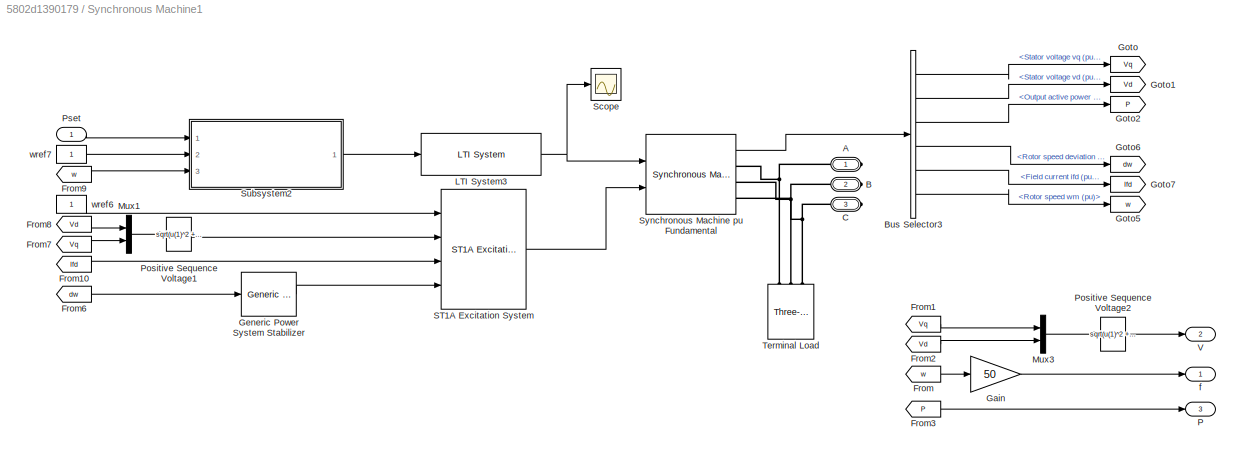
BLOCK [SubSystem] Synchronous Machine1
  Ports = [1, 3, 0, 0, 0, 0, 3]
  RequestExecContextInheritance = off
BLOCK [PMIOPort] Synchronous Machine1/A
  Side = Right
BLOCK [PMIOPort] Synchronous Machine1/B
  Port = 2
  Side = Right
BLOCK [BusSelector] Synchronous Machine1/Bus Selector3
  OutputAsBus = off
  OutputSignals = dq0 components.Stator voltage  vq (pu),dq0 components.Stator voltage  vd (pu),Output active power   Peo (pu),Mechanical.Rotor speed deviation  dw (pu),dq0 components.Field current  ifd (pu),Mechanical.Rotor speed  wm (pu)
  Ports = [1, 6]
BLOCK [PMIOPort] Synchronous Machine1/C
  Port = 3
  Side = Right
BLOCK [From] Synchronous Machine1/From
  GotoTag = w
BLOCK [From] Synchronous Machine1/From1
  GotoTag = Vq
BLOCK [From] Synchronous Machine1/From10
  GotoTag = Ifd
BLOCK [From] Synchronous Machine1/From2
  GotoTag = Vd
BLOCK [From] Synchronous Machine1/From3
  GotoTag = P
BLOCK [From] Synchronous Machine1/From6
  GotoTag = dw
BLOCK [From] Synchronous Machine1/From7
  GotoTag = Vq
BLOCK [From] Synchronous Machine1/From8
  GotoTag = Vd
BLOCK [From] Synchronous Machine1/From9
  GotoTag = w
BLOCK [Gain] Synchronous Machine1/Gain
  Gain = 50
  OutDataTypeStr = Inherit: Inherit via internal rule
  ParamDataTypeStr = Inherit: Inherit via internal rule
  SaturateOnIntegerOverflow = off
BLOCK [Reference] Synchronous Machine1/Generic Power System Stabilizer  REF=powerlib/Machines/Generic
Power System Stabilizer
  Ports = [1, 1]
  SourceBlock = powerlib/Machines/Generic\nPower System Stabilizer
  SourceProductBaseCode = PS
  SourceProductName = Simscape Electrical
  SourceType = Generic Power System Stabilizer
BLOCK [Goto] Synchronous Machine1/Goto
  GotoTag = Vq
BLOCK [Goto] Synchronous Machine1/Goto1
  GotoTag = Vd
BLOCK [Goto] Synchronous Machine1/Goto2
  GotoTag = P
BLOCK [Goto] Synchronous Machine1/Goto5
  GotoTag = w
BLOCK [Goto] Synchronous Machine1/Goto6
  GotoTag = dw
BLOCK [Goto] Synchronous Machine1/Goto7
  GotoTag = Ifd
BLOCK [Reference] Synchronous Machine1/LTI System3  REF=cstblocks/LTI System
  Ports = [1, 1]
  SourceBlock = cstblocks/LTI System
  SourceProductBaseCode = CT
  SourceProductName = Control System Toolbox
  SourceType = LTI Block
BLOCK [Mux] Synchronous Machine1/Mux1
  DisplayOption = bar
  Inputs = 2
  Ports = [2, 1]
BLOCK [Mux] Synchronous Machine1/Mux3
  DisplayOption = bar
  Inputs = 2
  Ports = [2, 1]
BLOCK [Outport] Synchronous Machine1/P
  IconDisplay = Port number
  Port = 3
  VectorParamsAs1DForOutWhenUnconnected = off
BLOCK [Fcn] Synchronous Machine1/Positive Sequence Voltage1
  Expr = sqrt(u(1)^2 + u(2)^2)
BLOCK [Fcn] Synchronous Machine1/Positive Sequence Voltage2
  Expr = sqrt(u(1)^2 + u(2)^2)
BLOCK [Inport] Synchronous Machine1/Pset
  IconDisplay = Port number
BLOCK [Reference] Synchronous Machine1/ST1A Excitation System  REF=sps_avr/ST1A
Excitation System
  Ports = [4, 1]
  SourceBlock = sps_avr/ST1A\nExcitation System
  SourceProductBaseCode = PS
  SourceProductName = Simscape Electrical
  SourceType = ST1A Excitation System
BLOCK [Scope] Synchronous Machine1/Scope
  Floating = off
  NumInputPorts = 1
  Ports = [1]
  ScopeSpecificationString = Simulink.scopes.TimeScopeBlockCfg('CurrentConfiguration', extmgr.ConfigurationSet(extmgr.Configuration('Core','General UI',true),extmgr.Configuration('Core','Source UI',true),extmgr.Configuration('Sources','WiredSimulink',true,'DataLoggingVariableName','ScopeData1'),extmgr.Configuration('Visuals','Time Domain',true,'SerializedDisplays',{struct('MinYLimReal','0.72567','MaxYLimReal','0.96894','YLabe...<+1467ch>
BLOCK [SubSystem] Synchronous Machine1/Subsystem2
  Ports = [3, 1]
  RequestExecContextInheritance = off
BLOCK [Gain] Synchronous Machine1/Subsystem2/1//droop
  Gain = 1/((droop_percentage/100))
  OutDataTypeStr = Inherit: Inherit via internal rule
  ParamDataTypeStr = Inherit: Inherit via internal rule
  SaturateOnIntegerOverflow = off
BLOCK [Sum] Synchronous Machine1/Subsystem2/Delta load setpoint
  IconShape = round
  InputSameDT = off
  Inputs = +-|
  OutDataTypeStr = Inherit: Inherit via internal rule
  Ports = [2, 1]
  SaturateOnIntegerOverflow = off
BLOCK [Sum] Synchronous Machine1/Subsystem2/Delta speed
  IconShape = round
  InputSameDT = off
  Inputs = -+|
  OutDataTypeStr = Inherit: Inherit via internal rule
  Ports = [2, 1]
  SaturateOnIntegerOverflow = off
BLOCK [Inport] Synchronous Machine1/Subsystem2/P_ref
  IconDisplay = Port number
BLOCK [Inport] Synchronous Machine1/Subsystem2/speed
  IconDisplay = Port number
  Port = 3
BLOCK [Inport] Synchronous Machine1/Subsystem2/speed_ref
  IconDisplay = Port number
  Port = 2
BLOCK [Outport] Synchronous Machine1/Subsystem2/throttle
  IconDisplay = Port number
  VectorParamsAs1DForOutWhenUnconnected = off
BLOCK [Reference] Synchronous Machine1/Synchronous Machine pu Fundamental  REF=powerlib/Machines/Synchronous Machine
pu Fundamental
  Ports = [2, 1, 0, 0, 0, 0, 3]
  SourceBlock = powerlib/Machines/Synchronous Machine\npu Fundamental
  SourceProductBaseCode = PS
  SourceProductName = Simscape Electrical
  SourceType = Synchronous Machine
BLOCK [Reference] Synchronous Machine1/Terminal Load  REF=powerlib/Elements/Three-Phase
Parallel RLC Load
  AttributesFormatString = \n
  Ports = [0, 0, 0, 0, 0, 3]
  SourceBlock = powerlib/Elements/Three-Phase\nParallel RLC Load
  SourceProductBaseCode = PS
  SourceProductName = Simscape Electrical
  SourceType = Three-Phase Parallel RLC Load
BLOCK [Outport] Synchronous Machine1/V
  IconDisplay = Port number
  Port = 2
  VectorParamsAs1DForOutWhenUnconnected = off
BLOCK [Outport] Synchronous Machine1/f
  IconDisplay = Port number
  VectorParamsAs1DForOutWhenUnconnected = off
BLOCK [Constant] Synchronous Machine1/wref6
BLOCK [Constant] Synchronous Machine1/wref7
BLOCK [Reference] Three-Phase Fault2  REF=powerlib/Elements/Three-Phase Fault
  Ports = [0, 0, 0, 0, 0, 3]
  SourceBlock = powerlib/Elements/Three-Phase Fault
  SourceProductBaseCode = PS
  SourceProductName = Simscape Electrical
  SourceType = Three-Phase Fault
BLOCK [Scope] VSC1
  Floating = off
  NumInputPorts = 4
  Ports = [4]
  ScopeSpecificationString = Simulink.scopes.TimeScopeBlockCfg('CurrentConfiguration', extmgr.ConfigurationSet(extmgr.Configuration('Core','General UI',true,'DisplayFullSourceName',true),extmgr.Configuration('Core','Source UI',true),extmgr.Configuration('Sources','WiredSimulink',true,'DataLogging',true,'DataLoggingVariableName','output1','DataLoggingMaxPoints','100000'),extmgr.Configuration('Visuals','Time Domain',true,'Seria...<+3570ch>
BLOCK [Reference] powergui  REF=powerlib/powergui
  Ports = []
  Priority = 1
  SourceBlock = powerlib/powergui
  SourceProductBaseCode = PS
  SourceProductName = Simscape Electrical
  SourceType = PSB option menu block
LINE  VSC-GF-VI-CurrRefLim/ Virtual Impedance/Constant:1 ->  VSC-GF-VI-CurrRefLim/ Virtual Impedance/Sum6:2
NET  VSC-GF-VI-CurrRefLim/ Virtual Impedance/Demux4:1 ->  VSC-GF-VI-CurrRefLim/ Virtual Impedance/Io_d * (w*Lv) :1,  VSC-GF-VI-CurrRefLim/ Virtual Impedance/Virtual resistance:1
NET  VSC-GF-VI-CurrRefLim/ Virtual Impedance/Demux4:2 ->  VSC-GF-VI-CurrRefLim/ Virtual Impedance/Io_q * (w*Lv) :1,  VSC-GF-VI-CurrRefLim/ Virtual Impedance/Virtual resistance2 :1
LINE  VSC-GF-VI-CurrRefLim/ Virtual Impedance/I_dq0:1 ->  VSC-GF-VI-CurrRefLim/ Virtual Impedance/Selector:1
LINE  VSC-GF-VI-CurrRefLim/ Virtual Impedance/Io_d * (w*Lv) :1 ->  VSC-GF-VI-CurrRefLim/ Virtual Impedance/Sum5:1
LINE  VSC-GF-VI-CurrRefLim/ Virtual Impedance/Io_q * (w*Lv) :1 ->  VSC-GF-VI-CurrRefLim/ Virtual Impedance/Sum4:2
LINE  VSC-GF-VI-CurrRefLim/ Virtual Impedance/Mux:1 ->  VSC-GF-VI-CurrRefLim/ Virtual Impedance/V_ref_dq0_VI:1
LINE  VSC-GF-VI-CurrRefLim/ Virtual Impedance/Selector:1 ->  VSC-GF-VI-CurrRefLim/ Virtual Impedance/Demux4:1
LINE  VSC-GF-VI-CurrRefLim/ Virtual Impedance/Sum4:1 ->  VSC-GF-VI-CurrRefLim/ Virtual Impedance/Mux:1
LINE  VSC-GF-VI-CurrRefLim/ Virtual Impedance/Sum5:1 ->  VSC-GF-VI-CurrRefLim/ Virtual Impedance/Mux:2
LINE  VSC-GF-VI-CurrRefLim/ Virtual Impedance/Sum6:1 ->  VSC-GF-VI-CurrRefLim/ Virtual Impedance/Sum5:2
LINE  VSC-GF-VI-CurrRefLim/ Virtual Impedance/Sum:1 ->  VSC-GF-VI-CurrRefLim/ Virtual Impedance/Sum4:1
LINE  VSC-GF-VI-CurrRefLim/ Virtual Impedance/V_ref_0:1 ->  VSC-GF-VI-CurrRefLim/ Virtual Impedance/Mux:3
LINE  VSC-GF-VI-CurrRefLim/ Virtual Impedance/V_ref_P-w :1 ->  VSC-GF-VI-CurrRefLim/ Virtual Impedance/Sum:1
NET  VSC-GF-VI-CurrRefLim/ Virtual Impedance/Virtual indutance:1 ->  VSC-GF-VI-CurrRefLim/ Virtual Impedance/Io_d * (w*Lv) :2,  VSC-GF-VI-CurrRefLim/ Virtual Impedance/Io_q * (w*Lv) :2
LINE  VSC-GF-VI-CurrRefLim/ Virtual Impedance/Virtual resistance2 :1 ->  VSC-GF-VI-CurrRefLim/ Virtual Impedance/Sum6:1
LINE  VSC-GF-VI-CurrRefLim/ Virtual Impedance/Virtual resistance:1 ->  VSC-GF-VI-CurrRefLim/ Virtual Impedance/Sum:2
LINE  VSC-GF-VI-CurrRefLim/ Virtual Impedance/w:1 ->  VSC-GF-VI-CurrRefLim/ Virtual Impedance/Virtual indutance:1
LINE  VSC-GF-VI-CurrRefLim/ Virtual Impedance:1 ->  VSC-GF-VI-CurrRefLim/Goto10:1
LINE  VSC-GF-VI-CurrRefLim/AC current limitation/Clock4:1 ->  VSC-GF-VI-CurrRefLim/AC current limitation/Switch4:2
NET  VSC-GF-VI-CurrRefLim/AC current limitation/Demux1:1 ->  VSC-GF-VI-CurrRefLim/AC current limitation/Product:1,  VSC-GF-VI-CurrRefLim/AC current limitation/Product:2
NET  VSC-GF-VI-CurrRefLim/AC current limitation/Demux1:2 ->  VSC-GF-VI-CurrRefLim/AC current limitation/Product1:1,  VSC-GF-VI-CurrRefLim/AC current limitation/Product1:2
NET  VSC-GF-VI-CurrRefLim/AC current limitation/Demux1:3 ->  VSC-GF-VI-CurrRefLim/AC current limitation/Product7:1,  VSC-GF-VI-CurrRefLim/AC current limitation/Product7:2
NET  VSC-GF-VI-CurrRefLim/AC current limitation/Demux2:1 ->  VSC-GF-VI-CurrRefLim/AC current limitation/Product2:1,  VSC-GF-VI-CurrRefLim/AC current limitation/Product2:2
NET  VSC-GF-VI-CurrRefLim/AC current limitation/Demux2:2 ->  VSC-GF-VI-CurrRefLim/AC current limitation/Product3:1,  VSC-GF-VI-CurrRefLim/AC current limitation/Product3:2
NET  VSC-GF-VI-CurrRefLim/AC current limitation/Demux2:3 ->  VSC-GF-VI-CurrRefLim/AC current limitation/Product4:1,  VSC-GF-VI-CurrRefLim/AC current limitation/Product4:2
LINE  VSC-GF-VI-CurrRefLim/AC current limitation/Divide:1 ->  VSC-GF-VI-CurrRefLim/AC current limitation/Product6:1
NET  VSC-GF-VI-CurrRefLim/AC current limitation/Gain3:1 ->  VSC-GF-VI-CurrRefLim/AC current limitation/Minus:2,  VSC-GF-VI-CurrRefLim/AC current limitation/Product6:2
LINE  VSC-GF-VI-CurrRefLim/AC current limitation/Minus1:1 ->  VSC-GF-VI-CurrRefLim/AC current limitation/Sqrt2:1
LINE  VSC-GF-VI-CurrRefLim/AC current limitation/Minus4:1 ->  VSC-GF-VI-CurrRefLim/AC current limitation/Sqrt1:1
LINE  VSC-GF-VI-CurrRefLim/AC current limitation/Minus:1 ->  VSC-GF-VI-CurrRefLim/AC current limitation/Saturation1:1
LINE  VSC-GF-VI-CurrRefLim/AC current limitation/Product1:1 ->  VSC-GF-VI-CurrRefLim/AC current limitation/Minus4:2
LINE  VSC-GF-VI-CurrRefLim/AC current limitation/Product2:1 ->  VSC-GF-VI-CurrRefLim/AC current limitation/Minus1:1
LINE  VSC-GF-VI-CurrRefLim/AC current limitation/Product3:1 ->  VSC-GF-VI-CurrRefLim/AC current limitation/Minus1:2
LINE  VSC-GF-VI-CurrRefLim/AC current limitation/Product4:1 ->  VSC-GF-VI-CurrRefLim/AC current limitation/Minus1:3
LINE  VSC-GF-VI-CurrRefLim/AC current limitation/Product6:1 ->  VSC-GF-VI-CurrRefLim/AC current limitation/Switch1:1
LINE  VSC-GF-VI-CurrRefLim/AC current limitation/Product7:1 ->  VSC-GF-VI-CurrRefLim/AC current limitation/Minus4:3
LINE  VSC-GF-VI-CurrRefLim/AC current limitation/Product:1 ->  VSC-GF-VI-CurrRefLim/AC current limitation/Minus4:1
LINE  VSC-GF-VI-CurrRefLim/AC current limitation/Saturation1:1 ->  VSC-GF-VI-CurrRefLim/AC current limitation/Sign:1
LINE  VSC-GF-VI-CurrRefLim/AC current limitation/Sign:1 ->  VSC-GF-VI-CurrRefLim/AC current limitation/Switch1:2
NET  VSC-GF-VI-CurrRefLim/AC current limitation/Sqrt1:1 ->  VSC-GF-VI-CurrRefLim/AC current limitation/Divide:2,  VSC-GF-VI-CurrRefLim/AC current limitation/Minus:1,  VSC-GF-VI-CurrRefLim/AC current limitation/||i_s_ref_dq0||:1
LINE  VSC-GF-VI-CurrRefLim/AC current limitation/Sqrt2:1 ->  VSC-GF-VI-CurrRefLim/AC current limitation/||i_s_ref_dq0_lim||:1
LINE  VSC-GF-VI-CurrRefLim/AC current limitation/Switch1:1 ->  VSC-GF-VI-CurrRefLim/AC current limitation/Switch4:1
NET  VSC-GF-VI-CurrRefLim/AC current limitation/Switch4:1 ->  VSC-GF-VI-CurrRefLim/AC current limitation/Demux2:1,  VSC-GF-VI-CurrRefLim/AC current limitation/i_s_ref_dq0_lim:1
LINE  VSC-GF-VI-CurrRefLim/AC current limitation/i_max:1 ->  VSC-GF-VI-CurrRefLim/AC current limitation/Gain3:1
NET  VSC-GF-VI-CurrRefLim/AC current limitation/i_s_ref_dq0:1 ->  VSC-GF-VI-CurrRefLim/AC current limitation/Demux1:1,  VSC-GF-VI-CurrRefLim/AC current limitation/Divide:1,  VSC-GF-VI-CurrRefLim/AC current limitation/Switch1:3,  VSC-GF-VI-CurrRefLim/AC current limitation/Switch4:3
LINE  VSC-GF-VI-CurrRefLim/AC current limitation:1 ->  VSC-GF-VI-CurrRefLim/Goto13:1
LINE  VSC-GF-VI-CurrRefLim/AC current limitation:2 ->  VSC-GF-VI-CurrRefLim/Mux6:2
LINE  VSC-GF-VI-CurrRefLim/AC current limitation:3 ->  VSC-GF-VI-CurrRefLim/Mux6:1
LINE  VSC-GF-VI-CurrRefLim/Add4:1 ->  VSC-GF-VI-CurrRefLim/LTI System3:1
LINE  VSC-GF-VI-CurrRefLim/Add6:1 ->  VSC-GF-VI-CurrRefLim/Gain16:1
LINE  VSC-GF-VI-CurrRefLim/Clock:1 ->  VSC-GF-VI-CurrRefLim/Switch:2
LINE  VSC-GF-VI-CurrRefLim/Constant11:1 ->  VSC-GF-VI-CurrRefLim/Droop Control:1
LINE  VSC-GF-VI-CurrRefLim/Constant1:1 ->  VSC-GF-VI-CurrRefLim/Add6:1
LINE  VSC-GF-VI-CurrRefLim/Constant4:1 ->  VSC-GF-VI-CurrRefLim/AC current limitation:2
LINE  VSC-GF-VI-CurrRefLim/Constant9:1 ->  VSC-GF-VI-CurrRefLim/Droop Control:4
NET  VSC-GF-VI-CurrRefLim/Current Loop/Demux1:1 ->  VSC-GF-VI-CurrRefLim/Current Loop/Product1:2,  VSC-GF-VI-CurrRefLim/Current Loop/Sum:2
NET  VSC-GF-VI-CurrRefLim/Current Loop/Demux1:2 ->  VSC-GF-VI-CurrRefLim/Current Loop/Product:1,  VSC-GF-VI-CurrRefLim/Current Loop/Sum6:1
LINE  VSC-GF-VI-CurrRefLim/Current Loop/Demux2:1 ->  VSC-GF-VI-CurrRefLim/Current Loop/Voltage compensator:1
LINE  VSC-GF-VI-CurrRefLim/Current Loop/Demux2:2 ->  VSC-GF-VI-CurrRefLim/Current Loop/Voltage Compensator 1:1
LINE  VSC-GF-VI-CurrRefLim/Current Loop/Demux:1 ->  VSC-GF-VI-CurrRefLim/Current Loop/Sum:1
LINE  VSC-GF-VI-CurrRefLim/Current Loop/Demux:2 ->  VSC-GF-VI-CurrRefLim/Current Loop/Sum6:2
LINE  VSC-GF-VI-CurrRefLim/Current Loop/Gain Corrector1:1 ->  VSC-GF-VI-CurrRefLim/Current Loop/Sum5:2
LINE  VSC-GF-VI-CurrRefLim/Current Loop/Gain Corrector:1 ->  VSC-GF-VI-CurrRefLim/Current Loop/Sum2:1
LINE  VSC-GF-VI-CurrRefLim/Current Loop/Integration Time 1:1 ->  VSC-GF-VI-CurrRefLim/Current Loop/Integrator 1:1
LINE  VSC-GF-VI-CurrRefLim/Current Loop/Integration Time1:1 ->  VSC-GF-VI-CurrRefLim/Current Loop/Sum1:2
LINE  VSC-GF-VI-CurrRefLim/Current Loop/Integration Time2:1 ->  VSC-GF-VI-CurrRefLim/Current Loop/Sum4:2
LINE  VSC-GF-VI-CurrRefLim/Current Loop/Integration Time:1 ->  VSC-GF-VI-CurrRefLim/Current Loop/Integrator:1
LINE  VSC-GF-VI-CurrRefLim/Current Loop/Integrator 1:1 ->  VSC-GF-VI-CurrRefLim/Current Loop/Sum4:1
LINE  VSC-GF-VI-CurrRefLim/Current Loop/Integrator:1 ->  VSC-GF-VI-CurrRefLim/Current Loop/Sum1:1
LINE  VSC-GF-VI-CurrRefLim/Current Loop/Mux:1 ->  VSC-GF-VI-CurrRefLim/Current Loop/v_s_ref_dq0:1
LINE  VSC-GF-VI-CurrRefLim/Current Loop/Product1:1 ->  VSC-GF-VI-CurrRefLim/Current Loop/Sum5:1
LINE  VSC-GF-VI-CurrRefLim/Current Loop/Product:1 ->  VSC-GF-VI-CurrRefLim/Current Loop/Sum2:2
LINE  VSC-GF-VI-CurrRefLim/Current Loop/Selector1:1 ->  VSC-GF-VI-CurrRefLim/Current Loop/Demux:1
LINE  VSC-GF-VI-CurrRefLim/Current Loop/Selector2:1 ->  VSC-GF-VI-CurrRefLim/Current Loop/Demux1:1
LINE  VSC-GF-VI-CurrRefLim/Current Loop/Selector3:1 ->  VSC-GF-VI-CurrRefLim/Current Loop/Demux2:1
LINE  VSC-GF-VI-CurrRefLim/Current Loop/Sum1:1 ->  VSC-GF-VI-CurrRefLim/Current Loop/Gain Corrector:1
LINE  VSC-GF-VI-CurrRefLim/Current Loop/Sum2:1 ->  VSC-GF-VI-CurrRefLim/Current Loop/Sum3:1
LINE  VSC-GF-VI-CurrRefLim/Current Loop/Sum3:1 ->  VSC-GF-VI-CurrRefLim/Current Loop/Mux:1
LINE  VSC-GF-VI-CurrRefLim/Current Loop/Sum4:1 ->  VSC-GF-VI-CurrRefLim/Current Loop/Gain Corrector1:1
LINE  VSC-GF-VI-CurrRefLim/Current Loop/Sum5:1 ->  VSC-GF-VI-CurrRefLim/Current Loop/Sum7:2
NET  VSC-GF-VI-CurrRefLim/Current Loop/Sum6:1 ->  VSC-GF-VI-CurrRefLim/Current Loop/Integration Time 1:1,  VSC-GF-VI-CurrRefLim/Current Loop/Integration Time2:1
LINE  VSC-GF-VI-CurrRefLim/Current Loop/Sum7:1 ->  VSC-GF-VI-CurrRefLim/Current Loop/Mux:2
NET  VSC-GF-VI-CurrRefLim/Current Loop/Sum:1 ->  VSC-GF-VI-CurrRefLim/Current Loop/Integration Time1:1,  VSC-GF-VI-CurrRefLim/Current Loop/Integration Time:1
LINE  VSC-GF-VI-CurrRefLim/Current Loop/Vm_0*:1 ->  VSC-GF-VI-CurrRefLim/Current Loop/Mux:3
LINE  VSC-GF-VI-CurrRefLim/Current Loop/Voltage Compensator 1:1 ->  VSC-GF-VI-CurrRefLim/Current Loop/Sum7:1
LINE  VSC-GF-VI-CurrRefLim/Current Loop/Voltage compensator:1 ->  VSC-GF-VI-CurrRefLim/Current Loop/Sum3:2
LINE  VSC-GF-VI-CurrRefLim/Current Loop/i_s_dq0:1 ->  VSC-GF-VI-CurrRefLim/Current Loop/Selector2:1
LINE  VSC-GF-VI-CurrRefLim/Current Loop/i_s_ref_dq0:1 ->  VSC-GF-VI-CurrRefLim/Current Loop/Selector1:1
LINE  VSC-GF-VI-CurrRefLim/Current Loop/v_dq0:1 ->  VSC-GF-VI-CurrRefLim/Current Loop/Selector3:1
NET  VSC-GF-VI-CurrRefLim/Current Loop/w*Lf_pu:1 ->  VSC-GF-VI-CurrRefLim/Current Loop/Product1:1,  VSC-GF-VI-CurrRefLim/Current Loop/Product:2
LINE  VSC-GF-VI-CurrRefLim/Current Loop/w:1 ->  VSC-GF-VI-CurrRefLim/Current Loop/w*Lf_pu:1
LINE  VSC-GF-VI-CurrRefLim/Current Loop:1 ->  VSC-GF-VI-CurrRefLim/Goto28:1
LINE  VSC-GF-VI-CurrRefLim/Current Measurement1:1 ->  VSC-GF-VI-CurrRefLim/Mux3:1
LINE  VSC-GF-VI-CurrRefLim/Current Measurement2:1 ->  VSC-GF-VI-CurrRefLim/Mux3:2
LINE  VSC-GF-VI-CurrRefLim/Current Measurement3:1 ->  VSC-GF-VI-CurrRefLim/Mux3:3
LINE  VSC-GF-VI-CurrRefLim/Current Measurement4:1 ->  VSC-GF-VI-CurrRefLim/Mux4:1
LINE  VSC-GF-VI-CurrRefLim/Current Measurement5:1 ->  VSC-GF-VI-CurrRefLim/Mux4:2
LINE  VSC-GF-VI-CurrRefLim/Current Measurement6:1 ->  VSC-GF-VI-CurrRefLim/Mux4:3
NET  VSC-GF-VI-CurrRefLim/Demux1:1 ->  VSC-GF-VI-CurrRefLim/d²1:1,  VSC-GF-VI-CurrRefLim/d²1:2
NET  VSC-GF-VI-CurrRefLim/Demux1:2 ->  VSC-GF-VI-CurrRefLim/q²1:1,  VSC-GF-VI-CurrRefLim/q²1:2
NET  VSC-GF-VI-CurrRefLim/Demux1:3 ->  VSC-GF-VI-CurrRefLim/q²2:1,  VSC-GF-VI-CurrRefLim/q²2:2
NET  VSC-GF-VI-CurrRefLim/Demux2:1 ->  VSC-GF-VI-CurrRefLim/d²2:1,  VSC-GF-VI-CurrRefLim/d²2:2
NET  VSC-GF-VI-CurrRefLim/Demux2:2 ->  VSC-GF-VI-CurrRefLim/q²4:1,  VSC-GF-VI-CurrRefLim/q²4:2
NET  VSC-GF-VI-CurrRefLim/Demux2:3 ->  VSC-GF-VI-CurrRefLim/q²5:1,  VSC-GF-VI-CurrRefLim/q²5:2
NET  VSC-GF-VI-CurrRefLim/Demux3:1 ->  VSC-GF-VI-CurrRefLim/d²3:1,  VSC-GF-VI-CurrRefLim/d²3:2
NET  VSC-GF-VI-CurrRefLim/Demux3:2 ->  VSC-GF-VI-CurrRefLim/q²3:1,  VSC-GF-VI-CurrRefLim/q²3:2
NET  VSC-GF-VI-CurrRefLim/Demux3:3 ->  VSC-GF-VI-CurrRefLim/q²6:1,  VSC-GF-VI-CurrRefLim/q²6:2
LINE  VSC-GF-VI-CurrRefLim/Droop Control/Demux:1 ->  VSC-GF-VI-CurrRefLim/Droop Control/Sum1:1
LINE  VSC-GF-VI-CurrRefLim/Droop Control/Demux:2 ->  VSC-GF-VI-CurrRefLim/Droop Control/Terminator:1
LINE  VSC-GF-VI-CurrRefLim/Droop Control/Demux:3 ->  VSC-GF-VI-CurrRefLim/Droop Control/Terminator1:1
LINE  VSC-GF-VI-CurrRefLim/Droop Control/Gain20:1 ->  VSC-GF-VI-CurrRefLim/Droop Control/Transfer Fcn2:1
NET  VSC-GF-VI-CurrRefLim/Droop Control/Integrator3:1 ->  VSC-GF-VI-CurrRefLim/Droop Control/abc to dq1:2,  VSC-GF-VI-CurrRefLim/Droop Control/theta_ref:1
LINE  VSC-GF-VI-CurrRefLim/Droop Control/Mux4:1 ->  VSC-GF-VI-CurrRefLim/Droop Control/v_ref_dq0:1
LINE  VSC-GF-VI-CurrRefLim/Droop Control/PID Controller:1 ->  VSC-GF-VI-CurrRefLim/Droop Control/Mux4:1
LINE  VSC-GF-VI-CurrRefLim/Droop Control/Sum1:1 ->  VSC-GF-VI-CurrRefLim/Droop Control/PID Controller:1
LINE  VSC-GF-VI-CurrRefLim/Droop Control/Sum7:1 ->  VSC-GF-VI-CurrRefLim/Droop Control/Gain20:1
NET  VSC-GF-VI-CurrRefLim/Droop Control/Sum8:1 ->  VSC-GF-VI-CurrRefLim/Droop Control/Integrator3:1,  VSC-GF-VI-CurrRefLim/Droop Control/w_ref:1
LINE  VSC-GF-VI-CurrRefLim/Droop Control/Transfer Fcn1:1 ->  VSC-GF-VI-CurrRefLim/Droop Control/Sum7:1
LINE  VSC-GF-VI-CurrRefLim/Droop Control/Transfer Fcn2:1 ->  VSC-GF-VI-CurrRefLim/Droop Control/Sum8:2
LINE  VSC-GF-VI-CurrRefLim/Droop Control/V_abc:1 ->  VSC-GF-VI-CurrRefLim/Droop Control/abc to dq1:1
LINE  VSC-GF-VI-CurrRefLim/Droop Control/abc to dq1:1 ->  VSC-GF-VI-CurrRefLim/Droop Control/Demux:1
LINE  VSC-GF-VI-CurrRefLim/Droop Control/p_m:1 ->  VSC-GF-VI-CurrRefLim/Droop Control/Transfer Fcn1:1
LINE  VSC-GF-VI-CurrRefLim/Droop Control/p_set:1 ->  VSC-GF-VI-CurrRefLim/Droop Control/Sum7:2
NET  VSC-GF-VI-CurrRefLim/Droop Control/q0:1 ->  VSC-GF-VI-CurrRefLim/Droop Control/Mux4:2,  VSC-GF-VI-CurrRefLim/Droop Control/Mux4:3
LINE  VSC-GF-VI-CurrRefLim/Droop Control/v_m:1 ->  VSC-GF-VI-CurrRefLim/Droop Control/Sum1:2
LINE  VSC-GF-VI-CurrRefLim/Droop Control/w_b:1 ->  VSC-GF-VI-CurrRefLim/Droop Control/Sum8:1
LINE  VSC-GF-VI-CurrRefLim/Droop Control:1 ->  VSC-GF-VI-CurrRefLim/Goto65:1
LINE  VSC-GF-VI-CurrRefLim/Droop Control:2 ->  VSC-GF-VI-CurrRefLim/Goto64:1
LINE  VSC-GF-VI-CurrRefLim/Droop Control:3 ->  VSC-GF-VI-CurrRefLim/Goto63:1
LINE  VSC-GF-VI-CurrRefLim/From10:1 ->  VSC-GF-VI-CurrRefLim/Gain1:1
LINE  VSC-GF-VI-CurrRefLim/From11:1 ->  VSC-GF-VI-CurrRefLim/Gain7:1
LINE  VSC-GF-VI-CurrRefLim/From12:1 ->  VSC-GF-VI-CurrRefLim/AC current limitation:1
LINE  VSC-GF-VI-CurrRefLim/From13:1 ->  VSC-GF-VI-CurrRefLim/ Virtual Impedance:1
LINE  VSC-GF-VI-CurrRefLim/From14:1 ->  VSC-GF-VI-CurrRefLim/Demux3:1
LINE  VSC-GF-VI-CurrRefLim/From15:1 ->  VSC-GF-VI-CurrRefLim/ Virtual Impedance:2
LINE  VSC-GF-VI-CurrRefLim/From16:1 ->  VSC-GF-VI-CurrRefLim/ Virtual Impedance:3
LINE  VSC-GF-VI-CurrRefLim/From17:1 ->  VSC-GF-VI-CurrRefLim/Voltage Loop:1
LINE  VSC-GF-VI-CurrRefLim/From18:1 ->  VSC-GF-VI-CurrRefLim/Current Loop:1
LINE  VSC-GF-VI-CurrRefLim/From19:1 ->  VSC-GF-VI-CurrRefLim/abc to dq1:1
LINE  VSC-GF-VI-CurrRefLim/From1:1 ->  VSC-GF-VI-CurrRefLim/Gain12:1
LINE  VSC-GF-VI-CurrRefLim/From20:1 ->  VSC-GF-VI-CurrRefLim/Demux2:1
LINE  VSC-GF-VI-CurrRefLim/From22:1 ->  VSC-GF-VI-CurrRefLim/abc to dq2:1
LINE  VSC-GF-VI-CurrRefLim/From2:1 ->  VSC-GF-VI-CurrRefLim/abc to dq4:1
LINE  VSC-GF-VI-CurrRefLim/From31:1 ->  VSC-GF-VI-CurrRefLim/dq0 to abc:1
LINE  VSC-GF-VI-CurrRefLim/From32:1 ->  VSC-GF-VI-CurrRefLim/dq0 to abc:2
LINE  VSC-GF-VI-CurrRefLim/From3:1 ->  VSC-GF-VI-CurrRefLim/Terminator:1
LINE  VSC-GF-VI-CurrRefLim/From41:1 ->  VSC-GF-VI-CurrRefLim/Voltage Loop:3
LINE  VSC-GF-VI-CurrRefLim/From43:1 ->  VSC-GF-VI-CurrRefLim/Voltage Loop:4
LINE  VSC-GF-VI-CurrRefLim/From44:1 ->  VSC-GF-VI-CurrRefLim/Voltage Loop:2
LINE  VSC-GF-VI-CurrRefLim/From45:1 ->  VSC-GF-VI-CurrRefLim/Current Loop:4
LINE  VSC-GF-VI-CurrRefLim/From46:1 ->  VSC-GF-VI-CurrRefLim/Current Loop:2
LINE  VSC-GF-VI-CurrRefLim/From47:1 ->  VSC-GF-VI-CurrRefLim/Current Loop:3
LINE  VSC-GF-VI-CurrRefLim/From4:1 ->  VSC-GF-VI-CurrRefLim/abc to dq6:1
LINE  VSC-GF-VI-CurrRefLim/From52:1 ->  VSC-GF-VI-CurrRefLim/Droop Control:5
LINE  VSC-GF-VI-CurrRefLim/From53:1 ->  VSC-GF-VI-CurrRefLim/Droop Control:3
LINE  VSC-GF-VI-CurrRefLim/From55:1 ->  VSC-GF-VI-CurrRefLim/Droop Control:2
LINE  VSC-GF-VI-CurrRefLim/From5:1 ->  VSC-GF-VI-CurrRefLim/Gain5:1
LINE  VSC-GF-VI-CurrRefLim/From61:1 ->  VSC-GF-VI-CurrRefLim/Gain6:1
LINE  VSC-GF-VI-CurrRefLim/From62:1 ->  VSC-GF-VI-CurrRefLim/Gain17:1
LINE  VSC-GF-VI-CurrRefLim/From63:1 ->  VSC-GF-VI-CurrRefLim/Add6:2
LINE  VSC-GF-VI-CurrRefLim/From6:1 ->  VSC-GF-VI-CurrRefLim/abc to dq3:1
LINE  VSC-GF-VI-CurrRefLim/From8:1 ->  VSC-GF-VI-CurrRefLim/Demux1:1
NET  VSC-GF-VI-CurrRefLim/From9:1 ->  VSC-GF-VI-CurrRefLim/abc to dq1:2,  VSC-GF-VI-CurrRefLim/abc to dq2:2,  VSC-GF-VI-CurrRefLim/abc to dq3:2,  VSC-GF-VI-CurrRefLim/abc to dq4:2,  VSC-GF-VI-CurrRefLim/abc to dq6:2
LINE  VSC-GF-VI-CurrRefLim/From:1 ->  VSC-GF-VI-CurrRefLim/Gain4:1
LINE  VSC-GF-VI-CurrRefLim/Gain12:1 ->  VSC-GF-VI-CurrRefLim/f:1
LINE  VSC-GF-VI-CurrRefLim/Gain13:1 ->  VSC-GF-VI-CurrRefLim/Add4:2
LINE  VSC-GF-VI-CurrRefLim/Gain16:1 ->  VSC-GF-VI-CurrRefLim/Add4:1
LINE  VSC-GF-VI-CurrRefLim/Gain17:1 ->  VSC-GF-VI-CurrRefLim/Add4:4
LINE  VSC-GF-VI-CurrRefLim/Gain19:1 ->  VSC-GF-VI-CurrRefLim/Universal Bridge:1
LINE  VSC-GF-VI-CurrRefLim/Gain1:1 ->  VSC-GF-VI-CurrRefLim/I_s:1
LINE  VSC-GF-VI-CurrRefLim/Gain2:1 ->  VSC-GF-VI-CurrRefLim/Goto7:1
LINE  VSC-GF-VI-CurrRefLim/Gain3:1 ->  VSC-GF-VI-CurrRefLim/Scope1:1
LINE  VSC-GF-VI-CurrRefLim/Gain4:1 ->  VSC-GF-VI-CurrRefLim/V:1
LINE  VSC-GF-VI-CurrRefLim/Gain5:1 ->  VSC-GF-VI-CurrRefLim/Add4:3
LINE  VSC-GF-VI-CurrRefLim/Gain6:1 ->  VSC-GF-VI-CurrRefLim/Transfer Fcn2:1
LINE  VSC-GF-VI-CurrRefLim/Gain7:1 ->  VSC-GF-VI-CurrRefLim/P:1
NET  VSC-GF-VI-CurrRefLim/LTI System3:1 ->  VSC-GF-VI-CurrRefLim/Saturation:1,  VSC-GF-VI-CurrRefLim/Switch:3
LINE  VSC-GF-VI-CurrRefLim/Memory1:1 ->  VSC-GF-VI-CurrRefLim/Goto:1
LINE  VSC-GF-VI-CurrRefLim/Memory2:1 ->  VSC-GF-VI-CurrRefLim/Goto3:1
LINE  VSC-GF-VI-CurrRefLim/Memory3:1 ->  VSC-GF-VI-CurrRefLim/Goto2:1
LINE  VSC-GF-VI-CurrRefLim/Memory4:1 ->  VSC-GF-VI-CurrRefLim/Goto4:1
LINE  VSC-GF-VI-CurrRefLim/Mux2:1 ->  VSC-GF-VI-CurrRefLim/Memory2:1
LINE  VSC-GF-VI-CurrRefLim/Mux3:1 ->  VSC-GF-VI-CurrRefLim/Memory3:1
LINE  VSC-GF-VI-CurrRefLim/Mux4:1 ->  VSC-GF-VI-CurrRefLim/Memory1:1
LINE  VSC-GF-VI-CurrRefLim/Mux6:1 ->  VSC-GF-VI-CurrRefLim/Gain3:1
LINE  VSC-GF-VI-CurrRefLim/Power (dq0, Instantaneous):1 ->  VSC-GF-VI-CurrRefLim/Goto8:1
LINE  VSC-GF-VI-CurrRefLim/Power (dq0, Instantaneous):2 ->  VSC-GF-VI-CurrRefLim/Goto12:1
LINE  VSC-GF-VI-CurrRefLim/Pset:1 ->  VSC-GF-VI-CurrRefLim/Gain2:1
LINE  VSC-GF-VI-CurrRefLim/Saturation:1 ->  VSC-GF-VI-CurrRefLim/Switch:1
LINE  VSC-GF-VI-CurrRefLim/Sqrt1:1 ->  VSC-GF-VI-CurrRefLim/Goto1:1
LINE  VSC-GF-VI-CurrRefLim/Sqrt2:1 ->  VSC-GF-VI-CurrRefLim/Goto20:1
LINE  VSC-GF-VI-CurrRefLim/Sqrt3:1 ->  VSC-GF-VI-CurrRefLim/Goto9:1
LINE  VSC-GF-VI-CurrRefLim/Sum1:1 ->  VSC-GF-VI-CurrRefLim/Sqrt1:1
LINE  VSC-GF-VI-CurrRefLim/Sum2:1 ->  VSC-GF-VI-CurrRefLim/Sqrt2:1
LINE  VSC-GF-VI-CurrRefLim/Sum3:1 ->  VSC-GF-VI-CurrRefLim/Sqrt3:1
LINE  VSC-GF-VI-CurrRefLim/Switch:1 ->  VSC-GF-VI-CurrRefLim/i_dc1:1
LINE  VSC-GF-VI-CurrRefLim/Transfer Fcn2:1 ->  VSC-GF-VI-CurrRefLim/Gain13:1
LINE  VSC-GF-VI-CurrRefLim/Voltage Loop/Current Compensator1:1 ->  VSC-GF-VI-CurrRefLim/Voltage Loop/Sum7:1
LINE  VSC-GF-VI-CurrRefLim/Voltage Loop/Current Compensator:1 ->  VSC-GF-VI-CurrRefLim/Voltage Loop/Sum3:2
LINE  VSC-GF-VI-CurrRefLim/Voltage Loop/Damping (d):1 ->  VSC-GF-VI-CurrRefLim/Voltage Loop/Sum2:1
LINE  VSC-GF-VI-CurrRefLim/Voltage Loop/Damping (q):1 ->  VSC-GF-VI-CurrRefLim/Voltage Loop/Sum5:2
NET  VSC-GF-VI-CurrRefLim/Voltage Loop/Demux1:1 ->  VSC-GF-VI-CurrRefLim/Voltage Loop/Eg_d * (wCf):1,  VSC-GF-VI-CurrRefLim/Voltage Loop/Sum:2
NET  VSC-GF-VI-CurrRefLim/Voltage Loop/Demux1:2 ->  VSC-GF-VI-CurrRefLim/Voltage Loop/Eg_q * (wCf) :1,  VSC-GF-VI-CurrRefLim/Voltage Loop/Sum6:1
LINE  VSC-GF-VI-CurrRefLim/Voltage Loop/Demux2:1 ->  VSC-GF-VI-CurrRefLim/Voltage Loop/Current Compensator:1
LINE  VSC-GF-VI-CurrRefLim/Voltage Loop/Demux2:2 ->  VSC-GF-VI-CurrRefLim/Voltage Loop/Current Compensator1:1
LINE  VSC-GF-VI-CurrRefLim/Voltage Loop/Demux:1 ->  VSC-GF-VI-CurrRefLim/Voltage Loop/Sum:1
LINE  VSC-GF-VI-CurrRefLim/Voltage Loop/Demux:2 ->  VSC-GF-VI-CurrRefLim/Voltage Loop/Sum6:2
LINE  VSC-GF-VI-CurrRefLim/Voltage Loop/Eg_d * (wCf):1 ->  VSC-GF-VI-CurrRefLim/Voltage Loop/Sum5:1
LINE  VSC-GF-VI-CurrRefLim/Voltage Loop/Eg_q * (wCf) :1 ->  VSC-GF-VI-CurrRefLim/Voltage Loop/Sum2:2
NET  VSC-GF-VI-CurrRefLim/Voltage Loop/Filter capacitance:1 ->  VSC-GF-VI-CurrRefLim/Voltage Loop/Eg_d * (wCf):2,  VSC-GF-VI-CurrRefLim/Voltage Loop/Eg_q * (wCf) :2
LINE  VSC-GF-VI-CurrRefLim/Voltage Loop/Integration Time1:1 ->  VSC-GF-VI-CurrRefLim/Voltage Loop/Integrator1:1
LINE  VSC-GF-VI-CurrRefLim/Voltage Loop/Integration Time2:1 ->  VSC-GF-VI-CurrRefLim/Voltage Loop/Sum1:2
LINE  VSC-GF-VI-CurrRefLim/Voltage Loop/Integration Time3:1 ->  VSC-GF-VI-CurrRefLim/Voltage Loop/Sum4:2
LINE  VSC-GF-VI-CurrRefLim/Voltage Loop/Integration Time:1 ->  VSC-GF-VI-CurrRefLim/Voltage Loop/Integrator:1
LINE  VSC-GF-VI-CurrRefLim/Voltage Loop/Integrator1:1 ->  VSC-GF-VI-CurrRefLim/Voltage Loop/Sum4:1
LINE  VSC-GF-VI-CurrRefLim/Voltage Loop/Integrator:1 ->  VSC-GF-VI-CurrRefLim/Voltage Loop/Sum1:1
LINE  VSC-GF-VI-CurrRefLim/Voltage Loop/Is_0*:1 ->  VSC-GF-VI-CurrRefLim/Voltage Loop/Mux:3
LINE  VSC-GF-VI-CurrRefLim/Voltage Loop/Mux:1 ->  VSC-GF-VI-CurrRefLim/Voltage Loop/i_s_ref_dq0:1
LINE  VSC-GF-VI-CurrRefLim/Voltage Loop/Selector1:1 ->  VSC-GF-VI-CurrRefLim/Voltage Loop/Demux:1
LINE  VSC-GF-VI-CurrRefLim/Voltage Loop/Selector2:1 ->  VSC-GF-VI-CurrRefLim/Voltage Loop/Demux2:1
LINE  VSC-GF-VI-CurrRefLim/Voltage Loop/Selector:1 ->  VSC-GF-VI-CurrRefLim/Voltage Loop/Demux1:1
LINE  VSC-GF-VI-CurrRefLim/Voltage Loop/Sum1:1 ->  VSC-GF-VI-CurrRefLim/Voltage Loop/Damping (d):1
LINE  VSC-GF-VI-CurrRefLim/Voltage Loop/Sum2:1 ->  VSC-GF-VI-CurrRefLim/Voltage Loop/Sum3:1
LINE  VSC-GF-VI-CurrRefLim/Voltage Loop/Sum3:1 ->  VSC-GF-VI-CurrRefLim/Voltage Loop/Mux:1
LINE  VSC-GF-VI-CurrRefLim/Voltage Loop/Sum4:1 ->  VSC-GF-VI-CurrRefLim/Voltage Loop/Damping (q):1
LINE  VSC-GF-VI-CurrRefLim/Voltage Loop/Sum5:1 ->  VSC-GF-VI-CurrRefLim/Voltage Loop/Sum7:2
NET  VSC-GF-VI-CurrRefLim/Voltage Loop/Sum6:1 ->  VSC-GF-VI-CurrRefLim/Voltage Loop/Integration Time1:1,  VSC-GF-VI-CurrRefLim/Voltage Loop/Integration Time3:1
LINE  VSC-GF-VI-CurrRefLim/Voltage Loop/Sum7:1 ->  VSC-GF-VI-CurrRefLim/Voltage Loop/Mux:2
NET  VSC-GF-VI-CurrRefLim/Voltage Loop/Sum:1 ->  VSC-GF-VI-CurrRefLim/Voltage Loop/Integration Time2:1,  VSC-GF-VI-CurrRefLim/Voltage Loop/Integration Time:1
LINE  VSC-GF-VI-CurrRefLim/Voltage Loop/i_dq0:1 ->  VSC-GF-VI-CurrRefLim/Voltage Loop/Selector2:1
LINE  VSC-GF-VI-CurrRefLim/Voltage Loop/v_dq0:1 ->  VSC-GF-VI-CurrRefLim/Voltage Loop/Selector:1
LINE  VSC-GF-VI-CurrRefLim/Voltage Loop/v_ref_dq0:1 ->  VSC-GF-VI-CurrRefLim/Voltage Loop/Selector1:1
LINE  VSC-GF-VI-CurrRefLim/Voltage Loop/w:1 ->  VSC-GF-VI-CurrRefLim/Voltage Loop/Filter capacitance:1
LINE  VSC-GF-VI-CurrRefLim/Voltage Loop:1 ->  VSC-GF-VI-CurrRefLim/Goto5:1
LINE  VSC-GF-VI-CurrRefLim/Voltage Measurement4:1 ->  VSC-GF-VI-CurrRefLim/Mux2:1
LINE  VSC-GF-VI-CurrRefLim/Voltage Measurement5:1 ->  VSC-GF-VI-CurrRefLim/Mux2:2
LINE  VSC-GF-VI-CurrRefLim/Voltage Measurement6:1 ->  VSC-GF-VI-CurrRefLim/Mux2:3
LINE  VSC-GF-VI-CurrRefLim/Voltage Measurement:1 ->  VSC-GF-VI-CurrRefLim/Memory4:1
LINE  VSC-GF-VI-CurrRefLim/abc to dq1:1 ->  VSC-GF-VI-CurrRefLim/Power (dq0, Instantaneous):2
LINE  VSC-GF-VI-CurrRefLim/abc to dq2:1 ->  VSC-GF-VI-CurrRefLim/Power (dq0, Instantaneous):1
LINE  VSC-GF-VI-CurrRefLim/abc to dq3:1 ->  VSC-GF-VI-CurrRefLim/Goto6:1
LINE  VSC-GF-VI-CurrRefLim/abc to dq4:1 ->  VSC-GF-VI-CurrRefLim/Goto11:1
LINE  VSC-GF-VI-CurrRefLim/abc to dq6:1 ->  VSC-GF-VI-CurrRefLim/Goto16:1
LINE  VSC-GF-VI-CurrRefLim/dq0 to abc:1 ->  VSC-GF-VI-CurrRefLim/Gain19:1
LINE  VSC-GF-VI-CurrRefLim/d²1:1 ->  VSC-GF-VI-CurrRefLim/Sum1:1
LINE  VSC-GF-VI-CurrRefLim/d²2:1 ->  VSC-GF-VI-CurrRefLim/Sum2:1
LINE  VSC-GF-VI-CurrRefLim/d²3:1 ->  VSC-GF-VI-CurrRefLim/Sum3:1
LINE  VSC-GF-VI-CurrRefLim/q²1:1 ->  VSC-GF-VI-CurrRefLim/Sum1:2
LINE  VSC-GF-VI-CurrRefLim/q²2:1 ->  VSC-GF-VI-CurrRefLim/Sum1:3
LINE  VSC-GF-VI-CurrRefLim/q²3:1 ->  VSC-GF-VI-CurrRefLim/Sum3:2
LINE  VSC-GF-VI-CurrRefLim/q²4:1 ->  VSC-GF-VI-CurrRefLim/Sum2:2
LINE  VSC-GF-VI-CurrRefLim/q²5:1 ->  VSC-GF-VI-CurrRefLim/Sum2:3
LINE  VSC-GF-VI-CurrRefLim/q²6:1 ->  VSC-GF-VI-CurrRefLim/Sum3:3
LINE  VSC-GF-VI-CurrRefLim:1 -> Goto58:1
LINE  VSC-GF-VI-CurrRefLim:2 -> Goto19:1
LINE  VSC-GF-VI-CurrRefLim:3 -> Goto59:1
LINE  VSC-GF-VI-CurrRefLim:4 -> Goto20:1
LINE Constant1:1 -> Synchronous Machine1:1
LINE Constant3:1 ->  VSC-GF-VI-CurrRefLim:1
LINE From10:1 -> Mux4:2
LINE From11:1 -> Mux5:1
LINE From12:1 -> Mux7:1
LINE From4:1 -> Mux8:2
LINE From6:1 -> Mux5:2
LINE From7:1 -> Mux4:1
LINE From9:1 -> Mux8:1
LINE Mux4:1 -> VSC1:2
LINE Mux5:1 -> VSC1:3
LINE Mux7:1 -> VSC1:4
LINE Mux8:1 -> VSC1:1
LINE Synchronous Machine1/Bus Selector3:1 -> Synchronous Machine1/Goto:1
LINE Synchronous Machine1/Bus Selector3:2 -> Synchronous Machine1/Goto1:1
LINE Synchronous Machine1/Bus Selector3:3 -> Synchronous Machine1/Goto2:1
LINE Synchronous Machine1/Bus Selector3:4 -> Synchronous Machine1/Goto6:1
LINE Synchronous Machine1/Bus Selector3:5 -> Synchronous Machine1/Goto7:1
LINE Synchronous Machine1/Bus Selector3:6 -> Synchronous Machine1/Goto5:1
LINE Synchronous Machine1/From10:1 -> Synchronous Machine1/ST1A Excitation System:3
LINE Synchronous Machine1/From1:1 -> Synchronous Machine1/Mux3:1
LINE Synchronous Machine1/From2:1 -> Synchronous Machine1/Mux3:2
LINE Synchronous Machine1/From3:1 -> Synchronous Machine1/P:1
LINE Synchronous Machine1/From6:1 -> Synchronous Machine1/Generic Power System Stabilizer:1
LINE Synchronous Machine1/From7:1 -> Synchronous Machine1/Mux1:2
LINE Synchronous Machine1/From8:1 -> Synchronous Machine1/Mux1:1
LINE Synchronous Machine1/From9:1 -> Synchronous Machine1/Subsystem2:3
LINE Synchronous Machine1/From:1 -> Synchronous Machine1/Gain:1
LINE Synchronous Machine1/Gain:1 -> Synchronous Machine1/f:1
LINE Synchronous Machine1/Generic Power System Stabilizer:1 -> Synchronous Machine1/ST1A Excitation System:4
NET Synchronous Machine1/LTI System3:1 -> Synchronous Machine1/Scope:1, Synchronous Machine1/Synchronous Machine pu Fundamental:1
LINE Synchronous Machine1/Mux1:1 -> Synchronous Machine1/Positive Sequence Voltage1:1
LINE Synchronous Machine1/Mux3:1 -> Synchronous Machine1/Positive Sequence Voltage2:1
LINE Synchronous Machine1/Positive Sequence Voltage1:1 -> Synchronous Machine1/ST1A Excitation System:2
LINE Synchronous Machine1/Positive Sequence Voltage2:1 -> Synchronous Machine1/V:1
LINE Synchronous Machine1/Pset:1 -> Synchronous Machine1/Subsystem2:1
LINE Synchronous Machine1/ST1A Excitation System:1 -> Synchronous Machine1/Synchronous Machine pu Fundamental:2
LINE Synchronous Machine1/Subsystem2/1//droop:1 -> Synchronous Machine1/Subsystem2/Delta load setpoint:2
LINE Synchronous Machine1/Subsystem2/Delta load setpoint:1 -> Synchronous Machine1/Subsystem2/throttle:1
LINE Synchronous Machine1/Subsystem2/Delta speed:1 -> Synchronous Machine1/Subsystem2/1//droop:1
LINE Synchronous Machine1/Subsystem2/P_ref:1 -> Synchronous Machine1/Subsystem2/Delta load setpoint:1
LINE Synchronous Machine1/Subsystem2/speed:1 -> Synchronous Machine1/Subsystem2/Delta speed:2
LINE Synchronous Machine1/Subsystem2/speed_ref:1 -> Synchronous Machine1/Subsystem2/Delta speed:1
LINE Synchronous Machine1/Subsystem2:1 -> Synchronous Machine1/LTI System3:1
LINE Synchronous Machine1/Synchronous Machine pu Fundamental:1 -> Synchronous Machine1/Bus Selector3:1
LINE Synchronous Machine1/wref6:1 -> Synchronous Machine1/ST1A Excitation System:1
LINE Synchronous Machine1/wref7:1 -> Synchronous Machine1/Subsystem2:2
LINE Synchronous Machine1:1 -> Goto2:1
LINE Synchronous Machine1:2 -> Goto1:1
LINE Synchronous Machine1:3 -> Goto3:1
PLINE  VSC-GF-VI-CurrRefLim/A:RConn1 --  VSC-GF-VI-CurrRefLim/Current Measurement1:RConn1
PLINE  VSC-GF-VI-CurrRefLim/B:RConn1 --  VSC-GF-VI-CurrRefLim/Current Measurement2:RConn1
PNET net1:  VSC-GF-VI-CurrRefLim/C Filter:LConn1 --  VSC-GF-VI-CurrRefLim/Current Measurement1:LConn1 --  VSC-GF-VI-CurrRefLim/RL Filter:RConn1 --  VSC-GF-VI-CurrRefLim/Voltage Measurement4:LConn1
PNET net2:  VSC-GF-VI-CurrRefLim/C Filter:LConn2 --  VSC-GF-VI-CurrRefLim/Current Measurement2:LConn1 --  VSC-GF-VI-CurrRefLim/RL Filter:RConn2 --  VSC-GF-VI-CurrRefLim/Voltage Measurement5:LConn1
PNET net3:  VSC-GF-VI-CurrRefLim/C Filter:LConn3 --  VSC-GF-VI-CurrRefLim/Current Measurement3:LConn1 --  VSC-GF-VI-CurrRefLim/RL Filter:RConn3 --  VSC-GF-VI-CurrRefLim/Voltage Measurement6:LConn1
PNET net4:  VSC-GF-VI-CurrRefLim/C Filter:RConn1 --  VSC-GF-VI-CurrRefLim/C Filter:RConn2 --  VSC-GF-VI-CurrRefLim/C Filter:RConn3 --  VSC-GF-VI-CurrRefLim/Ground2:LConn1
PLINE  VSC-GF-VI-CurrRefLim/C:RConn1 --  VSC-GF-VI-CurrRefLim/Current Measurement3:RConn1
PNET net5:  VSC-GF-VI-CurrRefLim/C_dc1:LConn1 --  VSC-GF-VI-CurrRefLim/G_dc1:LConn1 --  VSC-GF-VI-CurrRefLim/Universal Bridge:RConn1 --  VSC-GF-VI-CurrRefLim/Voltage Measurement:LConn1 --  VSC-GF-VI-CurrRefLim/i_dc1:RConn1
PNET net6:  VSC-GF-VI-CurrRefLim/C_dc1:RConn1 --  VSC-GF-VI-CurrRefLim/G_dc1:RConn1 --  VSC-GF-VI-CurrRefLim/Universal Bridge:RConn2 --  VSC-GF-VI-CurrRefLim/Voltage Measurement:LConn2 --  VSC-GF-VI-CurrRefLim/i_dc1:LConn1
PLINE  VSC-GF-VI-CurrRefLim/Current Measurement4:LConn1 --  VSC-GF-VI-CurrRefLim/Universal Bridge:LConn1
PLINE  VSC-GF-VI-CurrRefLim/Current Measurement4:RConn1 --  VSC-GF-VI-CurrRefLim/RL Filter:LConn1
PLINE  VSC-GF-VI-CurrRefLim/Current Measurement5:LConn1 --  VSC-GF-VI-CurrRefLim/Universal Bridge:LConn2
PLINE  VSC-GF-VI-CurrRefLim/Current Measurement5:RConn1 --  VSC-GF-VI-CurrRefLim/RL Filter:LConn2
PLINE  VSC-GF-VI-CurrRefLim/Current Measurement6:LConn1 --  VSC-GF-VI-CurrRefLim/Universal Bridge:LConn3
PLINE  VSC-GF-VI-CurrRefLim/Current Measurement6:RConn1 --  VSC-GF-VI-CurrRefLim/RL Filter:LConn3
PNET net7:  VSC-GF-VI-CurrRefLim/Ground1:LConn1 --  VSC-GF-VI-CurrRefLim/Voltage Measurement4:LConn2 --  VSC-GF-VI-CurrRefLim/Voltage Measurement5:LConn2 --  VSC-GF-VI-CurrRefLim/Voltage Measurement6:LConn2
PLINE  VSC-GF-VI-CurrRefLim:RConn1 -- LV//MV Trafo 2:LConn3
PLINE  VSC-GF-VI-CurrRefLim:RConn2 -- LV//MV Trafo 2:LConn2
PLINE  VSC-GF-VI-CurrRefLim:RConn3 -- LV//MV Trafo 2:LConn1
PNET net8: Base Load 1:LConn1 -- Breaker1:LConn1 -- Bus 1:LConn1 -- Bus2 1:RConn1
PNET net9: Base Load 1:LConn2 -- Breaker1:LConn2 -- Bus 1:LConn2 -- Bus2 1:RConn2
PNET net10: Base Load 1:LConn3 -- Breaker1:LConn3 -- Bus 1:LConn3 -- Bus2 1:RConn3
PLINE Breaker1:RConn1 -- Load Disturbance1:LConn1
PLINE Breaker1:RConn2 -- Load Disturbance1:LConn2
PLINE Breaker1:RConn3 -- Load Disturbance1:LConn3
PLINE Bus 1:RConn1 -- Line3:RConn1
PLINE Bus 1:RConn2 -- Line3:RConn2
PLINE Bus 1:RConn3 -- Line3:RConn3
PLINE Bus 2:LConn1 -- LV//MV Trafo 2:RConn1
PLINE Bus 2:LConn2 -- LV//MV Trafo 2:RConn2
PLINE Bus 2:LConn3 -- LV//MV Trafo 2:RConn3
PLINE Bus 2:RConn1 -- MV//HV Trafo 3:LConn1
PLINE Bus 2:RConn2 -- MV//HV Trafo 3:LConn2
PLINE Bus 2:RConn3 -- MV//HV Trafo 3:LConn3
PNET net11: Bus2 1:LConn1 -- Line2:RConn1 -- Three-Phase Fault2:LConn1
PNET net12: Bus2 1:LConn2 -- Line2:RConn2 -- Three-Phase Fault2:LConn2
PNET net13: Bus2 1:LConn3 -- Line2:RConn3 -- Three-Phase Fault2:LConn3
PLINE Bus2:LConn1 -- MV//HV Trafo 4:LConn1
PLINE Bus2:LConn2 -- MV//HV Trafo 4:LConn2
PLINE Bus2:LConn3 -- MV//HV Trafo 4:LConn3
PLINE Bus2:RConn1 -- Synchronous Machine1:RConn1
PLINE Bus2:RConn2 -- Synchronous Machine1:RConn2
PLINE Bus2:RConn3 -- Synchronous Machine1:RConn3
PLINE Line2:LConn1 -- MV//HV Trafo 4:RConn1
PLINE Line2:LConn2 -- MV//HV Trafo 4:RConn2
PLINE Line2:LConn3 -- MV//HV Trafo 4:RConn3
PLINE Line3:LConn1 -- MV//HV Trafo 3:RConn1
PLINE Line3:LConn2 -- MV//HV Trafo 3:RConn2
PLINE Line3:LConn3 -- MV//HV Trafo 3:RConn3
PNET net14: Synchronous Machine1/A:RConn1 -- Synchronous Machine1/Synchronous Machine pu Fundamental:RConn1 -- Synchronous Machine1/Terminal Load:LConn1
PNET net15: Synchronous Machine1/B:RConn1 -- Synchronous Machine1/Synchronous Machine pu Fundamental:RConn2 -- Synchronous Machine1/Terminal Load:LConn2
PNET net16: Synchronous Machine1/C:RConn1 -- Synchronous Machine1/Synchronous Machine pu Fundamental:RConn3 -- Synchronous Machine1/Terminal Load:LConn3
note: NET lines group one-source signal fan-out (src -> all destinations, sorted); 1:1 wires keep LINE; PNET lines group multi-terminal physical nets as a canonical sorted terminal list (undirected conserving connections); 2-terminal nets keep the pairwise PLINE form
